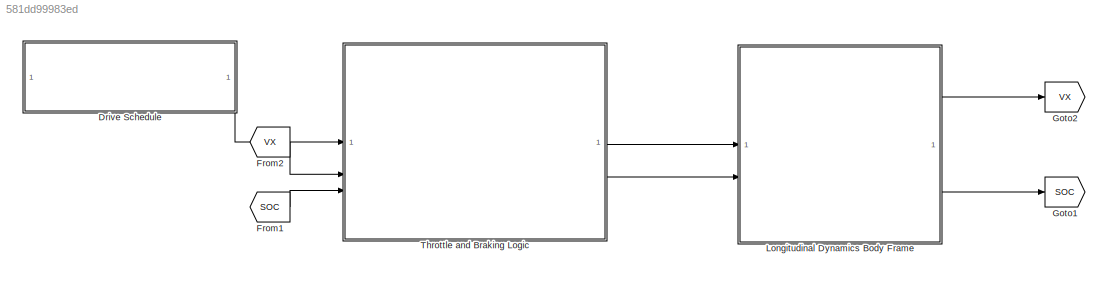
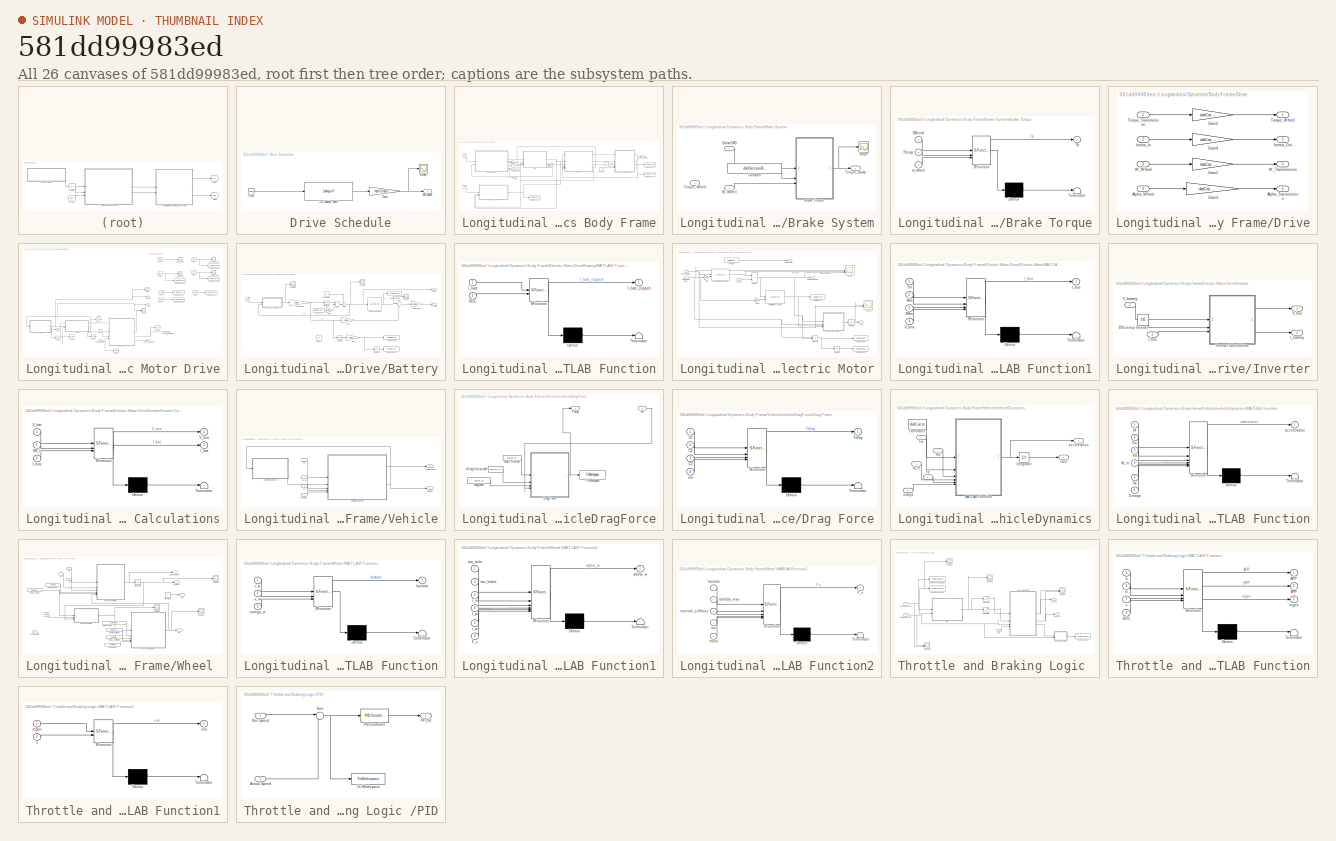
[diagram: thumbnail index - all 26 canvases of the model, root first then tree order]
MODEL slx_581dd99983ed
KIND model
CONFIG AbsTol = auto
CONFIG EnableMultiTasking = off
CONFIG FixedStep = 0.001
CONFIG MaxStep = auto
CONFIG MinStep = auto
CONFIG RelTol = 1e-3
CONFIG SampleTimeConstraint = Unconstrained
CONFIG SolverName = ode5
CONFIG StartTime = 0.0
CONFIG StopTime = 250
BLOCK [SubSystem] Drive Schedule
BLOCK [Lookup_n-D] Drive Schedule/1-D Lookup Table
  BreakpointsForDimension1 = Time
  InputPortMap = u0
  InternalRulePriority = Speed
  NumberOfTableDimensions = 1
  RndMeth = Simplest
  Table = DriveData
BLOCK [Clock] Drive Schedule/Clock
BLOCK [Gain] Drive Schedule/Gain
  Gain = mph2mps
BLOCK [Scope] Drive Schedule/Scope
  ActiveDisplayYMaximum = 28.35
  ActiveDisplayYMinimum = -3.15
  DataLoggingVariableName = ScopeData4
  Floating = off
  GraphicalSettings = {"GraphicalSettings":{"LegacySettings":true,"Style":{"Style":{"AxesColor":"[0 0 0]","ChannelNames":[""],"ColorOrder":"[1 0.909803921568627 0.392156862745098;0.149019607843137 0.549019607843137 0.866666666666667;0.96078431372549 0.466666666666667 0.16078431372549;0.286274509803922 0.858823529411765 0.250980392156863;0.752941176470588 0.36078431372549 0.984313725490196;0.423529411764706 0.9568627450...<+432ch>  <repeated x3 — deduplicated; at blocks: Scope, Scope1>
  MultipleDisplayCache = [{"MaxYLimMag":28.35,"MaxYLimReal":28.35,"MinYLimMag":0,"MinYLimReal":-3.15,"PlotAsMagnitudePhase":false,"ShowGrid":true,"ShowLegend":false,"Title":"%<SignalLabel>","YLabel":""}]
  NumInputPorts = 1
  WasSavedAsWebScope = on
  WindowPosition = [308 467 560 420]
BLOCK [Outport] Drive Schedule/des speed 
  VectorParamsAs1DForOutWhenUnconnected = off
BLOCK [From] From1
  GotoTag = SOC
BLOCK [From] From2
  GotoTag = VX
BLOCK [Goto] Goto1
  GotoTag = SOC
BLOCK [Goto] Goto2
  GotoTag = VX
BLOCK [SubSystem] Longitudinal Dynamics Body Frame
BLOCK [Inport] Longitudinal Dynamics Body Frame/APP (%)
BLOCK [Inport] Longitudinal Dynamics Body Frame/BPP (%) 
  Port = 2
BLOCK [SubSystem] Longitudinal Dynamics Body Frame/Brake System
BLOCK [SubSystem] Longitudinal Dynamics Body Frame/Brake System/Brake Torque
  ErrorFcn = Stateflow.Translate.translate
  PermitHierarchicalResolution = ExplicitOnly
  SFBlockType = MATLAB Function
  TreatAsAtomicUnit = on
BLOCK [Demux] Longitudinal Dynamics Body Frame/Brake System/Brake Torque/ Demux 
  Outputs = 1
BLOCK [S-Function] Longitudinal Dynamics Body Frame/Brake System/Brake Torque/ SFunction 
  EnableBusSupport = off
  FunctionName = sf_sfun
  PortCounts = [3 2]
  SFcnIsStateOwnerBlock = off
  SFunctionDeploymentMode = off
  Tag = Stateflow S-Function 7
BLOCK [Terminator] Longitudinal Dynamics Body Frame/Brake System/Brake Torque/ Terminator 
BLOCK [Inport] Longitudinal Dynamics Body Frame/Brake System/Brake Torque/BBcmd
BLOCK [Outport] Longitudinal Dynamics Body Frame/Brake System/Brake Torque/Tb
BLOCK [Inport] Longitudinal Dynamics Body Frame/Brake System/Brake Torque/Tbcap
  Port = 2
BLOCK [Inport] Longitudinal Dynamics Body Frame/Brake System/Brake Torque/w_wheel
  Port = 3
BLOCK [Inport] Longitudinal Dynamics Body Frame/Brake System/BrakeCMD 
BLOCK [Constant] Longitudinal Dynamics Body Frame/Brake System/Constant
  Value = datCar.maxBrakeTorque
BLOCK [Scope] Longitudinal Dynamics Body Frame/Brake System/Scope
  ActiveDisplayYMaximum = 56.62718
  ActiveDisplayYMinimum = -3252.17168
  DataLoggingVariableName = ScopeData4
  Floating = off
  GraphicalSettings = {"GraphicalSettings":{"LegacySettings":true,"Style":{"AxesScalingProperties":{"ScaleAxesLimitsAtStop":false},"Style":{"AxesColor":"[0 0 0]","ChannelNames":[""],"ColorOrder":"[1 0.909803921568627 0.392156862745098;0.149019607843137 0.549019607843137 0.866666666666667;0.96078431372549 0.466666666666667 0.16078431372549;0.286274509803922 0.858823529411765 0.250980392156863;0.752941176470588 0.3607843...<+488ch>
  MultipleDisplayCache = [{"MaxYLimMag":3252.17168,"MaxYLimReal":56.62718,"MinYLimMag":0,"MinYLimReal":-3252.17168,"PlotAsMagnitudePhase":false,"ShowGrid":true,"ShowLegend":false,"Title":"%<SignalLabel>","YLabel":""}]
  NumInputPorts = 1
  WasSavedAsWebScope = on
BLOCK [Outport] Longitudinal Dynamics Body Frame/Brake System/Torque_Brake
  VectorParamsAs1DForOutWhenUnconnected = off
BLOCK [Inport] Longitudinal Dynamics Body Frame/Brake System/Torque_Wheel
  Port = 3
BLOCK [Inport] Longitudinal Dynamics Body Frame/Brake System/W_Wheel
  Port = 2
BLOCK [Constant] Longitudinal Dynamics Body Frame/Constant
  Value = 0
BLOCK [Constant] Longitudinal Dynamics Body Frame/Constant1
  Value = 0
BLOCK [SubSystem] Longitudinal Dynamics Body Frame/Drive
BLOCK [Outport] Longitudinal Dynamics Body Frame/Drive/Alpha_Transmission
  Port = 4
BLOCK [Inport] Longitudinal Dynamics Body Frame/Drive/Alpha_Wheel
  Port = 4
BLOCK [Gain] Longitudinal Dynamics Body Frame/Drive/Gain1
  Gain = datCar.FDRatio
BLOCK [Gain] Longitudinal Dynamics Body Frame/Drive/Gain2
  Gain = datCar.FDRatio
BLOCK [Gain] Longitudinal Dynamics Body Frame/Drive/Gain3
  Gain = datCar.FDRatio
BLOCK [Gain] Longitudinal Dynamics Body Frame/Drive/Gain4
  Gain = datCar.FDRatio^2
BLOCK [Inport] Longitudinal Dynamics Body Frame/Drive/Inertia_In
  Port = 2
BLOCK [Outport] Longitudinal Dynamics Body Frame/Drive/Inertia_Out
  Port = 2
BLOCK [Inport] Longitudinal Dynamics Body Frame/Drive/Torque_Transmission
BLOCK [Outport] Longitudinal Dynamics Body Frame/Drive/Torque_Wheel
BLOCK [Outport] Longitudinal Dynamics Body Frame/Drive/W_Transmission
  Port = 3
BLOCK [Inport] Longitudinal Dynamics Body Frame/Drive/W_Wheel
  Port = 3
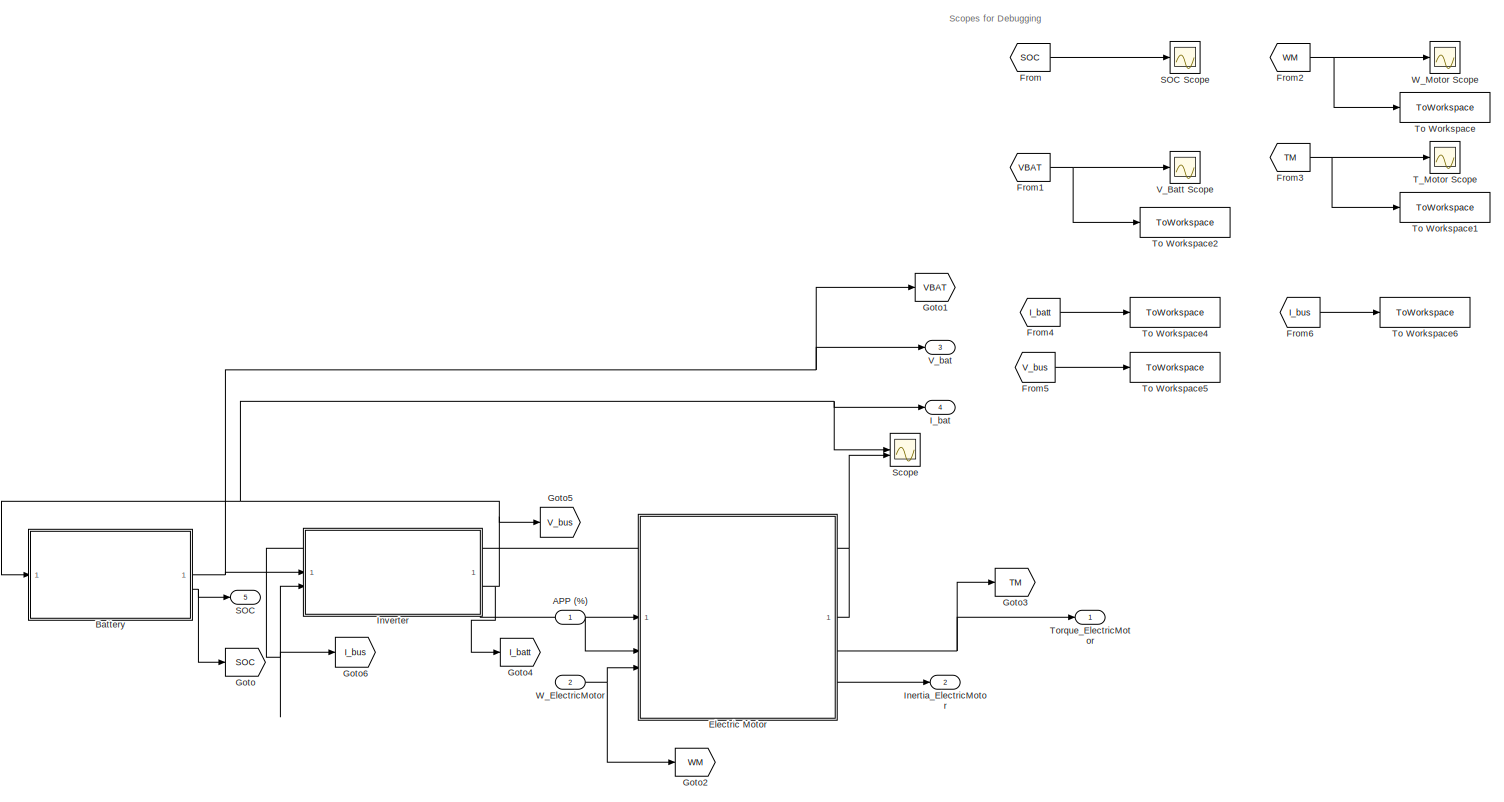
[diagram: Longitudinal Dynamics Body Frame/Electric Motor Drive - part 1/1, most of the canvas]
BLOCK [SubSystem] Longitudinal Dynamics Body Frame/Electric Motor Drive
BLOCK [Inport] Longitudinal Dynamics Body Frame/Electric Motor Drive/APP (%)
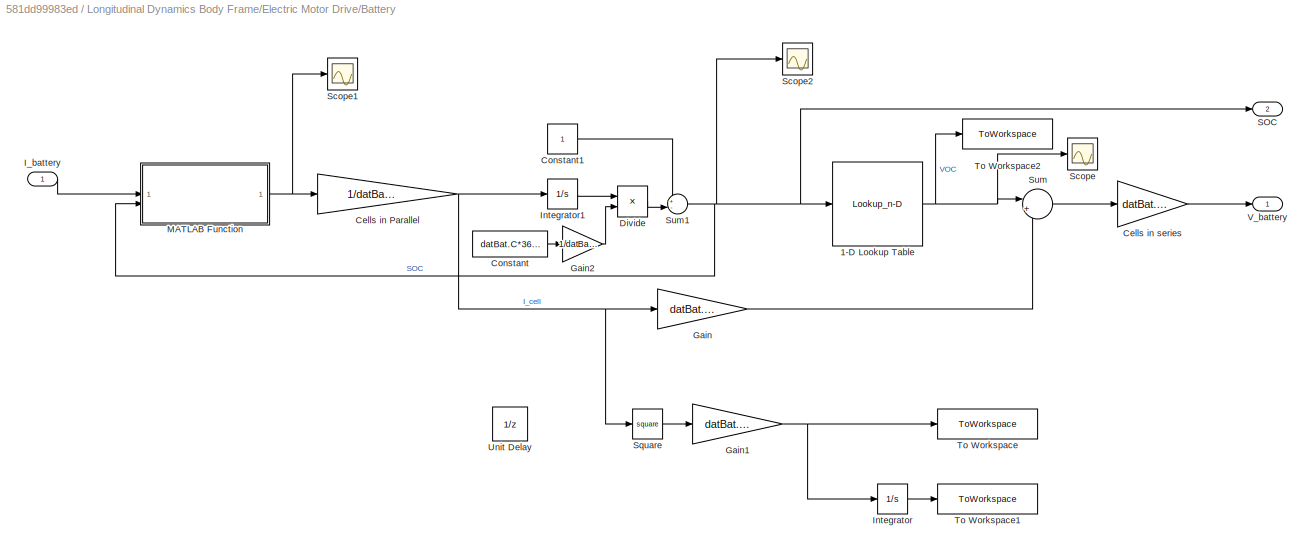
BLOCK [SubSystem] Longitudinal Dynamics Body Frame/Electric Motor Drive/Battery
BLOCK [Lookup_n-D] Longitudinal Dynamics Body Frame/Electric Motor Drive/Battery/1-D Lookup Table
  BreakpointsForDimension1 = datBat.SOC
  ExtrapMethod = Clip
  InputPortMap = u0
  InternalRulePriority = Speed
  NumberOfTableDimensions = 1
  RndMeth = Simplest
  Table = datBat.OCV
  UseLastTableValue = on
BLOCK [Gain] Longitudinal Dynamics Body Frame/Electric Motor Drive/Battery/Cells in Parallel
  Gain = 1/datBat.numParallel
BLOCK [Gain] Longitudinal Dynamics Body Frame/Electric Motor Drive/Battery/Cells in series
  Gain = datBat.numSeries
BLOCK [Constant] Longitudinal Dynamics Body Frame/Electric Motor Drive/Battery/Constant
  Value = datBat.C*3600
BLOCK [Constant] Longitudinal Dynamics Body Frame/Electric Motor Drive/Battery/Constant1
BLOCK [Product] Longitudinal Dynamics Body Frame/Electric Motor Drive/Battery/Divide
  Inputs = */
BLOCK [Gain] Longitudinal Dynamics Body Frame/Electric Motor Drive/Battery/Gain
  Gain = datBat.Rint
BLOCK [Gain] Longitudinal Dynamics Body Frame/Electric Motor Drive/Battery/Gain1
  Gain = datBat.Rint
BLOCK [Gain] Longitudinal Dynamics Body Frame/Electric Motor Drive/Battery/Gain2
  Gain = 1/datBat.numParallel
BLOCK [Inport] Longitudinal Dynamics Body Frame/Electric Motor Drive/Battery/I_battery
BLOCK [Integrator] Longitudinal Dynamics Body Frame/Electric Motor Drive/Battery/Integrator
BLOCK [Integrator] Longitudinal Dynamics Body Frame/Electric Motor Drive/Battery/Integrator1
  InitialCondition = 1459.5
BLOCK [SubSystem] Longitudinal Dynamics Body Frame/Electric Motor Drive/Battery/MATLAB Function
  ErrorFcn = Stateflow.Translate.translate
  LibrarySourceBlock = simulink/User-Defined\nFunctions/MATLAB Function
  PermitHierarchicalResolution = ExplicitOnly
  SFBlockType = MATLAB Function
  TreatAsAtomicUnit = on
BLOCK [Demux] Longitudinal Dynamics Body Frame/Electric Motor Drive/Battery/MATLAB Function/ Demux 
  Outputs = 1
BLOCK [S-Function] Longitudinal Dynamics Body Frame/Electric Motor Drive/Battery/MATLAB Function/ SFunction 
  EnableBusSupport = off
  FunctionName = sf_sfun
  PortCounts = [2 2]
  SFcnIsStateOwnerBlock = off
  SFunctionDeploymentMode = off
  Tag = Stateflow S-Function 13
BLOCK [Terminator] Longitudinal Dynamics Body Frame/Electric Motor Drive/Battery/MATLAB Function/ Terminator 
BLOCK [Inport] Longitudinal Dynamics Body Frame/Electric Motor Drive/Battery/MATLAB Function/I_batt
BLOCK [Outport] Longitudinal Dynamics Body Frame/Electric Motor Drive/Battery/MATLAB Function/I_batt_clipped
BLOCK [Inport] Longitudinal Dynamics Body Frame/Electric Motor Drive/Battery/MATLAB Function/SOC
  Port = 2
BLOCK [Outport] Longitudinal Dynamics Body Frame/Electric Motor Drive/Battery/SOC
  Port = 2
BLOCK [Scope] Longitudinal Dynamics Body Frame/Electric Motor Drive/Battery/Scope
  ActiveDisplayYMaximum = 3.9505775108183836
  ActiveDisplayYMinimum = 3.9447746248567759
  DataLoggingVariableName = ScopeData5
  Floating = off
  GraphicalSettings = {"Style":{"BackgroundColor":[0.12941176470588237,0.12941176470588237,0.12941176470588237],"AxesColor":[0.07058823529411765,0.07058823529411765,0.07058823529411765],"LabelsColor":[0.8509803921568627,0.8509803921568627,0.8509803921568627],"PreserveColors":false,"Visible":[true],"LineStyle":["-"],"LineWidth":[1.5],"BarWidth":[0.9],"LineColor":["auto"],"LineFaceAlpha":[1],"LineEdgeAlpha":[1],"Marker":...<+1933ch>
  MultipleDisplayCache = [{"MaxYLimMag":3.9505775108183836,"MaxYLimReal":3.9505775108183836,"MinYLimMag":3.9447746248567759,"MinYLimReal":3.9447746248567759,"PlotAsMagnitudePhase":false,"ShowGrid":true,"ShowLegend":false,"Title":"%<SignalLabel>","YLabel":""}]
  NumInputPorts = 1
  ScopeFrameLocation = window
  WasSavedAsWebScope = on
  WindowPosition = [1000.000000,510.000000,560.000000,420.000000,]
BLOCK [Scope] Longitudinal Dynamics Body Frame/Electric Motor Drive/Battery/Scope1
  ActiveDisplayYMaximum = 120.71055450400272
  ActiveDisplayYMinimum = -38.071970075878966
  DataLoggingVariableName = ScopeData6
  Floating = off
  GraphicalSettings = {"Style":{"BackgroundColor":[0.12941176470588237,0.12941176470588237,0.12941176470588237],"AxesColor":[0.07058823529411765,0.07058823529411765,0.07058823529411765],"LabelsColor":[0.8509803921568627,0.8509803921568627,0.8509803921568627],"PreserveColors":false,"Visible":[true],"LineStyle":["-"],"LineWidth":[1.5],"BarWidth":[0.9],"LineColor":["auto"],"LineFaceAlpha":[1],"LineEdgeAlpha":[1],"Marker":...<+1964ch>
  MultipleDisplayCache = [{"MaxYLimMag":120.71055450400272,"MaxYLimReal":120.71055450400272,"MinYLimMag":0,"MinYLimReal":-38.071970075878966,"PlotAsMagnitudePhase":false,"ShowGrid":true,"ShowLegend":false,"Title":"%<SignalLabel>","YLabel":""}]
  NumInputPorts = 1
  ScopeFrameLocation = window
  WasSavedAsWebScope = on
  WindowPosition = [1000.000000,510.000000,560.000000,420.000000,]
BLOCK [Scope] Longitudinal Dynamics Body Frame/Electric Motor Drive/Battery/Scope2
  ActiveDisplayYMaximum = 0.80115502179471731
  ActiveDisplayYMinimum = 0.78954924829198925
  Floating = off
  GraphicalSettings = {"Style":{"BackgroundColor":[0.12941176470588237,0.12941176470588237,0.12941176470588237],"AxesColor":[0.07058823529411765,0.07058823529411765,0.07058823529411765],"LabelsColor":[0.8509803921568627,0.8509803921568627,0.8509803921568627],"PreserveColors":false,"Visible":[true],"LineStyle":["-"],"LineWidth":[1.5],"BarWidth":[0.9],"LineColor":["auto"],"LineFaceAlpha":[1],"LineEdgeAlpha":[1],"Marker":...<+1990ch>
  MultipleDisplayCache = [{"MaxYLimMag":0.80115502179471731,"MaxYLimReal":0.80115502179471731,"MinYLimMag":0.78954924829198925,"MinYLimReal":0.78954924829198925,"PlotAsMagnitudePhase":false,"ShowGrid":true,"ShowLegend":false,"Title":"%<SignalLabel>","YLabel":""}]
  NumInputPorts = 1
  ScopeFrameLocation = window
  WasSavedAsWebScope = on
  WindowPosition = [1000.000000,510.000000,560.000000,420.000000,]
BLOCK [Math] Longitudinal Dynamics Body Frame/Electric Motor Drive/Battery/Square
  Operator = square
BLOCK [Sum] Longitudinal Dynamics Body Frame/Electric Motor Drive/Battery/Sum
  Inputs = |+-
BLOCK [Sum] Longitudinal Dynamics Body Frame/Electric Motor Drive/Battery/Sum1
  Inputs = +-|
BLOCK [ToWorkspace] Longitudinal Dynamics Body Frame/Electric Motor Drive/Battery/To Workspace
  FixptAsFi = on
  MaxDataPoints = inf
  SampleTime = -1
  SaveFormat = Timeseries
  VariableName = BatteryPowerLosses
BLOCK [ToWorkspace] Longitudinal Dynamics Body Frame/Electric Motor Drive/Battery/To Workspace1
  FixptAsFi = on
  MaxDataPoints = inf
  SampleTime = -1
  SaveFormat = Timeseries
  VariableName = BatteryEnergyLosses
BLOCK [ToWorkspace] Longitudinal Dynamics Body Frame/Electric Motor Drive/Battery/To Workspace2
  FixptAsFi = on
  MaxDataPoints = inf
  SampleTime = -1
  SaveFormat = Timeseries
  VariableName = OCV
BLOCK [UnitDelay] Longitudinal Dynamics Body Frame/Electric Motor Drive/Battery/Unit Delay
  HasFrameUpgradeWarning = on
  SampleTime = -1
BLOCK [Outport] Longitudinal Dynamics Body Frame/Electric Motor Drive/Battery/V_battery
BLOCK [SubSystem] Longitudinal Dynamics Body Frame/Electric Motor Drive/Electric Motor
BLOCK [Inport] Longitudinal Dynamics Body Frame/Electric Motor Drive/Electric Motor/APP (%)
  Port = 2
BLOCK [Inport] Longitudinal Dynamics Body Frame/Electric Motor Drive/Electric Motor/Bus Voltage (V)
BLOCK [Constant] Longitudinal Dynamics Body Frame/Electric Motor Drive/Electric Motor/Constant
  Value = datMotor.inertia
BLOCK [Gain] Longitudinal Dynamics Body Frame/Electric Motor Drive/Electric Motor/Gain
  Gain = 30/pi
BLOCK [Gain] Longitudinal Dynamics Body Frame/Electric Motor Drive/Electric Motor/Gain1
  Gain = 30/pi
BLOCK [Outport] Longitudinal Dynamics Body Frame/Electric Motor Drive/Electric Motor/I_bus
BLOCK [Outport] Longitudinal Dynamics Body Frame/Electric Motor Drive/Electric Motor/Inertia_Motor
  Port = 3
BLOCK [Integrator] Longitudinal Dynamics Body Frame/Electric Motor Drive/Electric Motor/Integrator
BLOCK [SubSystem] Longitudinal Dynamics Body Frame/Electric Motor Drive/Electric Motor/MATLAB Function1
  ErrorFcn = Stateflow.Translate.translate
  LibrarySourceBlock = simulink/User-Defined\nFunctions/MATLAB Function
  PermitHierarchicalResolution = ExplicitOnly
  SFBlockType = MATLAB Function
  TreatAsAtomicUnit = on
BLOCK [Demux] Longitudinal Dynamics Body Frame/Electric Motor Drive/Electric Motor/MATLAB Function1/ Demux 
  Outputs = 1
BLOCK [S-Function] Longitudinal Dynamics Body Frame/Electric Motor Drive/Electric Motor/MATLAB Function1/ SFunction 
  EnableBusSupport = off
  FunctionName = sf_sfun
  PortCounts = [4 2]
  SFcnIsStateOwnerBlock = off
  SFunctionDeploymentMode = off
  Tag = Stateflow S-Function 1
BLOCK [Terminator] Longitudinal Dynamics Body Frame/Electric Motor Drive/Electric Motor/MATLAB Function1/ Terminator 
BLOCK [Inport] Longitudinal Dynamics Body Frame/Electric Motor Drive/Electric Motor/MATLAB Function1/Effm
  Port = 3
BLOCK [Outport] Longitudinal Dynamics Body Frame/Electric Motor Drive/Electric Motor/MATLAB Function1/I_bus
BLOCK [Inport] Longitudinal Dynamics Body Frame/Electric Motor Drive/Electric Motor/MATLAB Function1/Tm
BLOCK [Inport] Longitudinal Dynamics Body Frame/Electric Motor Drive/Electric Motor/MATLAB Function1/V_bus
  Port = 4
BLOCK [Inport] Longitudinal Dynamics Body Frame/Electric Motor Drive/Electric Motor/MATLAB Function1/Wm
  Port = 2
BLOCK [Lookup_n-D] Longitudinal Dynamics Body Frame/Electric Motor Drive/Electric Motor/Max Motor Torque Table
  BreakpointsForDimension1 = datMotor.vbus
  BreakpointsForDimension2 = datMotor.rpm
  BreakpointsForDimension3 = [5, 7]
  ExtrapMethod = Clip
  InputPortMap = u0,u1
  InternalRulePriority = Speed
  RndMeth = Simplest
  Table = datMotor.maxtorque
  UseLastTableValue = on
BLOCK [ToWorkspace] Longitudinal Dynamics Body Frame/Electric Motor Drive/Electric Motor/Motor Efficiency
  FixptAsFi = on
  MaxDataPoints = inf
  SampleTime = -1
  SaveFormat = Timeseries
  VariableName = efficiency_motor
BLOCK [Lookup_n-D] Longitudinal Dynamics Body Frame/Electric Motor Drive/Electric Motor/Motor Efficiency Table
  BreakpointsForDimension1 = datMotor.eta_torque
  BreakpointsForDimension2 = datMotor.eta_speed
  BreakpointsForDimension3 = [5, 7]
  ExtrapMethod = Clip
  InputPortMap = u0,u1
  InternalRulePriority = Speed
  RndMeth = Simplest
  Table = datMotor.eta_val
  UseLastTableValue = on
BLOCK [Inport] Longitudinal Dynamics Body Frame/Electric Motor Drive/Electric Motor/Motor Speed (rad//s)
  Port = 3
BLOCK [Outport] Longitudinal Dynamics Body Frame/Electric Motor Drive/Electric Motor/Motor Torque (Nm)
  Port = 2
BLOCK [Product] Longitudinal Dynamics Body Frame/Electric Motor Drive/Electric Motor/Product
BLOCK [Product] Longitudinal Dynamics Body Frame/Electric Motor Drive/Electric Motor/Product1
BLOCK [Scope] Longitudinal Dynamics Body Frame/Electric Motor Drive/Electric Motor/Scope
  ActiveDisplayYMaximum = 699.63306
  ActiveDisplayYMinimum = -117.53104
  DataLoggingVariableName = ScopeData1
  Floating = off
  GraphicalSettings = {"GraphicalSettings":{"LegacySettings":true,"Style":{"Style":{"AxesColor":"[0 0 0]","ChannelNames":[""],"ColorOrder":"[1 0.909803921568627 0.392156862745098;0.149019607843137 0.549019607843137 0.866666666666667;0.96078431372549 0.466666666666667 0.16078431372549;0.286274509803922 0.858823529411765 0.250980392156863;0.752941176470588 0.36078431372549 0.984313725490196;0.423529411764706 0.9568627450...<+438ch>
  MultipleDisplayCache = [{"MaxYLimMag":699.63306,"MaxYLimReal":699.63306,"MinYLimMag":0,"MinYLimReal":-117.53104,"PlotAsMagnitudePhase":false,"ShowGrid":true,"ShowLegend":true,"Title":"%<SignalLabel>","YLabel":""}]
  NumInputPorts = 3
  ShowLegend = on
  WasSavedAsWebScope = on
  WindowPosition = [502 121 560 420]
BLOCK [Scope] Longitudinal Dynamics Body Frame/Electric Motor Drive/Electric Motor/Scope1
  ActiveDisplayYMaximum = 433.2973
  ActiveDisplayYMinimum = -70.21177
  DataLoggingVariableName = ScopeData2
  Floating = off
  GraphicalSettings = {"GraphicalSettings":{"LegacySettings":true,"Style":{"Style":{"AxesColor":"[0 0 0]","ChannelNames":[""],"ColorOrder":"[1 0.909803921568627 0.392156862745098;0.149019607843137 0.549019607843137 0.866666666666667;0.96078431372549 0.466666666666667 0.16078431372549;0.286274509803922 0.858823529411765 0.250980392156863;0.752941176470588 0.36078431372549 0.984313725490196;0.423529411764706 0.9568627450...<+438ch>
  MultipleDisplayCache = [{"MaxYLimMag":433.2973,"MaxYLimReal":433.2973,"MinYLimMag":0,"MinYLimReal":-70.21177,"PlotAsMagnitudePhase":false,"ShowGrid":true,"ShowLegend":true,"Title":"%<SignalLabel>","YLabel":""}]
  NumInputPorts = 3
  ShowLegend = on
  WasSavedAsWebScope = on
  WindowPosition = [502 121 560 420]
BLOCK [ToWorkspace] Longitudinal Dynamics Body Frame/Electric Motor Drive/Electric Motor/To Workspace
  FixptAsFi = on
  MaxDataPoints = inf
  SampleTime = -1
  SaveFormat = Timeseries
  VariableName = MotorPower
BLOCK [ToWorkspace] Longitudinal Dynamics Body Frame/Electric Motor Drive/Electric Motor/To Workspace1
  FixptAsFi = on
  MaxDataPoints = inf
  SampleTime = -1
  SaveFormat = Timeseries
  VariableName = MotorEnergy
BLOCK [UnitDelay] Longitudinal Dynamics Body Frame/Electric Motor Drive/Electric Motor/Unit Delay
  HasFrameUpgradeWarning = on
  SampleTime = -1
BLOCK [From] Longitudinal Dynamics Body Frame/Electric Motor Drive/From
  GotoTag = SOC
BLOCK [From] Longitudinal Dynamics Body Frame/Electric Motor Drive/From1
  GotoTag = VBAT
BLOCK [From] Longitudinal Dynamics Body Frame/Electric Motor Drive/From2
  GotoTag = WM
BLOCK [From] Longitudinal Dynamics Body Frame/Electric Motor Drive/From3
  GotoTag = TM
BLOCK [From] Longitudinal Dynamics Body Frame/Electric Motor Drive/From4
  GotoTag = I_batt
BLOCK [From] Longitudinal Dynamics Body Frame/Electric Motor Drive/From5
  GotoTag = V_bus
BLOCK [From] Longitudinal Dynamics Body Frame/Electric Motor Drive/From6
  GotoTag = I_bus
BLOCK [Goto] Longitudinal Dynamics Body Frame/Electric Motor Drive/Goto
  GotoTag = SOC
BLOCK [Goto] Longitudinal Dynamics Body Frame/Electric Motor Drive/Goto1
  GotoTag = VBAT
BLOCK [Goto] Longitudinal Dynamics Body Frame/Electric Motor Drive/Goto2
  GotoTag = WM
BLOCK [Goto] Longitudinal Dynamics Body Frame/Electric Motor Drive/Goto3
  GotoTag = TM
BLOCK [Goto] Longitudinal Dynamics Body Frame/Electric Motor Drive/Goto4
  GotoTag = I_batt
BLOCK [Goto] Longitudinal Dynamics Body Frame/Electric Motor Drive/Goto5
  GotoTag = V_bus
BLOCK [Goto] Longitudinal Dynamics Body Frame/Electric Motor Drive/Goto6
  GotoTag = I_bus
BLOCK [Outport] Longitudinal Dynamics Body Frame/Electric Motor Drive/I_bat
  Port = 4
BLOCK [Outport] Longitudinal Dynamics Body Frame/Electric Motor Drive/Inertia_ElectricMotor
  Port = 2
BLOCK [SubSystem] Longitudinal Dynamics Body Frame/Electric Motor Drive/Inverter
BLOCK [Constant] Longitudinal Dynamics Body Frame/Electric Motor Drive/Inverter/Efficiency Inverter
  Value = 0.95
BLOCK [Outport] Longitudinal Dynamics Body Frame/Electric Motor Drive/Inverter/I_battery
  Port = 2
BLOCK [Inport] Longitudinal Dynamics Body Frame/Electric Motor Drive/Inverter/I_bus
  Port = 2
BLOCK [SubSystem] Longitudinal Dynamics Body Frame/Electric Motor Drive/Inverter/Inverter Calculations
  ErrorFcn = Stateflow.Translate.translate
  LibrarySourceBlock = simulink/User-Defined\nFunctions/MATLAB Function
  PermitHierarchicalResolution = ExplicitOnly
  SFBlockType = MATLAB Function
  TreatAsAtomicUnit = on
BLOCK [Demux] Longitudinal Dynamics Body Frame/Electric Motor Drive/Inverter/Inverter Calculations/ Demux 
  Outputs = 1
BLOCK [S-Function] Longitudinal Dynamics Body Frame/Electric Motor Drive/Inverter/Inverter Calculations/ SFunction 
  EnableBusSupport = off
  FunctionName = sf_sfun
  PortCounts = [3 3]
  SFcnIsStateOwnerBlock = off
  SFunctionDeploymentMode = off
  Tag = Stateflow S-Function 5
BLOCK [Terminator] Longitudinal Dynamics Body Frame/Electric Motor Drive/Inverter/Inverter Calculations/ Terminator 
BLOCK [Inport] Longitudinal Dynamics Body Frame/Electric Motor Drive/Inverter/Inverter Calculations/Eff_I
  Port = 2
BLOCK [Outport] Longitudinal Dynamics Body Frame/Electric Motor Drive/Inverter/Inverter Calculations/I_bat
  Port = 2
BLOCK [Inport] Longitudinal Dynamics Body Frame/Electric Motor Drive/Inverter/Inverter Calculations/I_bus
  Port = 3
BLOCK [Inport] Longitudinal Dynamics Body Frame/Electric Motor Drive/Inverter/Inverter Calculations/V_bat
BLOCK [Outport] Longitudinal Dynamics Body Frame/Electric Motor Drive/Inverter/Inverter Calculations/V_bus
BLOCK [Inport] Longitudinal Dynamics Body Frame/Electric Motor Drive/Inverter/V_battery
BLOCK [Outport] Longitudinal Dynamics Body Frame/Electric Motor Drive/Inverter/V_bus
BLOCK [Outport] Longitudinal Dynamics Body Frame/Electric Motor Drive/SOC
  Port = 5
BLOCK [Scope] Longitudinal Dynamics Body Frame/Electric Motor Drive/SOC Scope
  ActiveDisplayYMaximum = 0.80103
  ActiveDisplayYMinimum = 0.79068
  DataLoggingVariableName = ScopeData7
  Floating = off
  GraphicalSettings = {"GraphicalSettings":{"LegacySettings":true,"Style":{"AxesScalingProperties":{"ScaleAxesLimitsAtStop":false},"Style":{"AxesColor":"[0 0 0]","ChannelNames":[""],"ColorOrder":"[1 0.909803921568627 0.392156862745098;0.149019607843137 0.549019607843137 0.866666666666667;0.96078431372549 0.466666666666667 0.16078431372549;0.286274509803922 0.858823529411765 0.250980392156863;0.752941176470588 0.3607843...<+544ch>  <repeated x3 — deduplicated; at blocks: SOC Scope, T_Motor Scope, V_Batt Scope>
  MultipleDisplayCache = [{"MaxYLimMag":0.80103,"MaxYLimReal":0.80103,"MinYLimMag":0.79068,"MinYLimReal":0.79068,"PlotAsMagnitudePhase":false,"ShowGrid":true,"ShowLegend":false,"Title":"%<SignalLabel>","YLabel":""}]
  NumInputPorts = 1
  WasSavedAsWebScope = on
BLOCK [Scope] Longitudinal Dynamics Body Frame/Electric Motor Drive/Scope
  ActiveDisplayYMaximum = 118.26537
  ActiveDisplayYMinimum = -92.41521
  DataLoggingVariableName = ScopeData2
  Floating = off
  GraphicalSettings = {"GraphicalSettings":{"LegacySettings":true,"Style":{"AxesScalingProperties":{"ScaleAxesLimitsAtStop":false},"Style":{"AxesColor":"[0 0 0]","ChannelNames":[""],"ColorOrder":"[1 0.909803921568627 0.392156862745098;0.149019607843137 0.549019607843137 0.866666666666667;0.96078431372549 0.466666666666667 0.16078431372549;0.286274509803922 0.858823529411765 0.250980392156863;0.752941176470588 0.3607843...<+547ch>
  MultipleDisplayCache = [{"MaxYLimMag":118.26537,"MaxYLimReal":118.26537,"MinYLimMag":0,"MinYLimReal":-92.41521,"PlotAsMagnitudePhase":false,"ShowGrid":true,"ShowLegend":true,"Title":"%<SignalLabel>","YLabel":""}]
  NumInputPorts = 2
  ShowLegend = on
  WasSavedAsWebScope = on
BLOCK [Scope] Longitudinal Dynamics Body Frame/Electric Motor Drive/T_Motor Scope
  ActiveDisplayYMaximum = 115.47111
  ActiveDisplayYMinimum = -92.74121
  DataLoggingVariableName = ScopeData10
  Floating = off
  MultipleDisplayCache = [{"MaxYLimMag":115.47111,"MaxYLimReal":115.47111,"MinYLimMag":0,"MinYLimReal":-92.74121,"PlotAsMagnitudePhase":false,"ShowGrid":true,"ShowLegend":false,"Title":"%<SignalLabel>","YLabel":""}]
  NumInputPorts = 1
  WasSavedAsWebScope = on
BLOCK [ToWorkspace] Longitudinal Dynamics Body Frame/Electric Motor Drive/To Workspace
  FixptAsFi = on
  MaxDataPoints = inf
  SampleTime = -1
  SaveFormat = Timeseries
  VariableName = motor_speed
BLOCK [ToWorkspace] Longitudinal Dynamics Body Frame/Electric Motor Drive/To Workspace1
  FixptAsFi = on
  MaxDataPoints = inf
  SampleTime = -1
  SaveFormat = Timeseries
  VariableName = motor_torque
BLOCK [ToWorkspace] Longitudinal Dynamics Body Frame/Electric Motor Drive/To Workspace2
  FixptAsFi = on
  MaxDataPoints = inf
  SampleTime = -1
  SaveFormat = Timeseries
  VariableName = V_bat
BLOCK [ToWorkspace] Longitudinal Dynamics Body Frame/Electric Motor Drive/To Workspace4
  FixptAsFi = on
  MaxDataPoints = inf
  SampleTime = -1
  SaveFormat = Timeseries
  VariableName = I_bat
BLOCK [ToWorkspace] Longitudinal Dynamics Body Frame/Electric Motor Drive/To Workspace5
  FixptAsFi = on
  MaxDataPoints = inf
  SampleTime = -1
  SaveFormat = Timeseries
  VariableName = V_bus
BLOCK [ToWorkspace] Longitudinal Dynamics Body Frame/Electric Motor Drive/To Workspace6
  FixptAsFi = on
  MaxDataPoints = inf
  SampleTime = -1
  SaveFormat = Timeseries
  VariableName = I_bus
BLOCK [Outport] Longitudinal Dynamics Body Frame/Electric Motor Drive/Torque_ElectricMotor
BLOCK [Scope] Longitudinal Dynamics Body Frame/Electric Motor Drive/V_Batt Scope
  ActiveDisplayYMaximum = 391.49042
  ActiveDisplayYMinimum = 354.15627
  DataLoggingVariableName = ScopeData8
  Floating = off
  MultipleDisplayCache = [{"MaxYLimMag":391.49042,"MaxYLimReal":391.49042,"MinYLimMag":354.15627,"MinYLimReal":354.15627,"PlotAsMagnitudePhase":false,"ShowGrid":true,"ShowLegend":false,"Title":"%<SignalLabel>","YLabel":""}]
  NumInputPorts = 1
  WasSavedAsWebScope = on
BLOCK [Outport] Longitudinal Dynamics Body Frame/Electric Motor Drive/V_bat
  Port = 3
BLOCK [Inport] Longitudinal Dynamics Body Frame/Electric Motor Drive/W_ElectricMotor
  Port = 2
BLOCK [Scope] Longitudinal Dynamics Body Frame/Electric Motor Drive/W_Motor Scope
  ActiveDisplayYMaximum = 695.87961
  ActiveDisplayYMinimum = -83.74997
  DataLoggingVariableName = ScopeData9
  Floating = off
  GraphicalSettings = {"GraphicalSettings":{"LegacySettings":true,"Style":{"AxesScalingProperties":{"AxesScaling":"After N Updates"},"Style":{"AxesColor":"[0 0 0]","ChannelNames":[""],"ColorOrder":"[1 0.909803921568627 0.392156862745098;0.149019607843137 0.549019607843137 0.866666666666667;0.96078431372549 0.466666666666667 0.16078431372549;0.286274509803922 0.858823529411765 0.250980392156863;0.752941176470588 0.36078...<+546ch>
  MultipleDisplayCache = [{"MaxYLimMag":695.87961,"MaxYLimReal":695.87961,"MinYLimMag":0,"MinYLimReal":-83.74997,"PlotAsMagnitudePhase":false,"ShowGrid":true,"ShowLegend":true,"Title":"%<SignalLabel>","YLabel":""}]
  NumInputPorts = 1
  ShowLegend = on
  ShowTimeAxisLabel = on
  WasSavedAsWebScope = on
BLOCK [Outport] Longitudinal Dynamics Body Frame/SOC
  Port = 2
BLOCK [Terminator] Longitudinal Dynamics Body Frame/Terminator
BLOCK [Terminator] Longitudinal Dynamics Body Frame/Terminator1
BLOCK [Terminator] Longitudinal Dynamics Body Frame/Terminator3
BLOCK [ToWorkspace] Longitudinal Dynamics Body Frame/To Workspace
  FixptAsFi = on
  MaxDataPoints = inf
  SampleTime = -1
  SaveFormat = Timeseries
  VariableName = SOC
BLOCK [ToWorkspace] Longitudinal Dynamics Body Frame/To Workspace1
  FixptAsFi = on
  MaxDataPoints = inf
  SampleTime = -1
  SaveFormat = Timeseries
  VariableName = ActualSpeed
BLOCK [ToWorkspace] Longitudinal Dynamics Body Frame/To Workspace2
  FixptAsFi = on
  MaxDataPoints = inf
  SampleTime = -1
  SaveFormat = Timeseries
  VariableName = brake_torque
BLOCK [ToWorkspace] Longitudinal Dynamics Body Frame/To Workspace3
  FixptAsFi = on
  MaxDataPoints = inf
  SampleTime = -1
  SaveFormat = Timeseries
  VariableName = veh_accn
BLOCK [SubSystem] Longitudinal Dynamics Body Frame/Vehicle
BLOCK [Outport] Longitudinal Dynamics Body Frame/Vehicle/Acceleration
  Port = 2
BLOCK [Inport] Longitudinal Dynamics Body Frame/Vehicle/Fw 
BLOCK [Inport] Longitudinal Dynamics Body Frame/Vehicle/M_in 
  Port = 2
BLOCK [Outport] Longitudinal Dynamics Body Frame/Vehicle/Velocity 
  VectorParamsAs1DForOutWhenUnconnected = off
BLOCK [Inport] Longitudinal Dynamics Body Frame/Vehicle/omega
  Port = 4
BLOCK [SubSystem] Longitudinal Dynamics Body Frame/Vehicle/vehicleDragForce
BLOCK [SubSystem] Longitudinal Dynamics Body Frame/Vehicle/vehicleDragForce/Drag Force
  ErrorFcn = Stateflow.Translate.translate
  PermitHierarchicalResolution = ExplicitOnly
  SFBlockType = MATLAB Function
  TreatAsAtomicUnit = on
BLOCK [Demux] Longitudinal Dynamics Body Frame/Vehicle/vehicleDragForce/Drag Force/ Demux 
  Outputs = 1
BLOCK [S-Function] Longitudinal Dynamics Body Frame/Vehicle/vehicleDragForce/Drag Force/ SFunction 
  EnableBusSupport = off
  FunctionName = sf_sfun
  PortCounts = [4 2]
  SFcnIsStateOwnerBlock = off
  SFunctionDeploymentMode = off
  Tag = Stateflow S-Function 9
BLOCK [Terminator] Longitudinal Dynamics Body Frame/Vehicle/vehicleDragForce/Drag Force/ Terminator 
BLOCK [Inport] Longitudinal Dynamics Body Frame/Vehicle/vehicleDragForce/Drag Force/C0
BLOCK [Inport] Longitudinal Dynamics Body Frame/Vehicle/vehicleDragForce/Drag Force/C1
  Port = 2
BLOCK [Inport] Longitudinal Dynamics Body Frame/Vehicle/vehicleDragForce/Drag Force/C2
  Port = 3
BLOCK [Outport] Longitudinal Dynamics Body Frame/Vehicle/vehicleDragForce/Drag Force/Fdrag
  VectorParamsAs1DForOutWhenUnconnected = off
BLOCK [Inport] Longitudinal Dynamics Body Frame/Vehicle/vehicleDragForce/Drag Force/vel
  Port = 4
BLOCK [Outport] Longitudinal Dynamics Body Frame/Vehicle/vehicleDragForce/Fdrag
BLOCK [ToWorkspace] Longitudinal Dynamics Body Frame/Vehicle/vehicleDragForce/To Workspace
  FixptAsFi = on
  MaxDataPoints = inf
  SampleTime = -1
  SaveFormat = Timeseries
  VariableName = Faero
BLOCK [Constant] Longitudinal Dynamics Body Frame/Vehicle/vehicleDragForce/drag coeff
  NameLocation = top
  Value = datCar.C2
BLOCK [Constant] Longitudinal Dynamics Body Frame/Vehicle/vehicleDragForce/rolling friction coeff
  NameLocation = top
  Value = datCar.C1
BLOCK [Constant] Longitudinal Dynamics Body Frame/Vehicle/vehicleDragForce/static friction
  NameLocation = top
  Value = datCar.C0
BLOCK [Inport] Longitudinal Dynamics Body Frame/Vehicle/vehicleDragForce/vel
BLOCK [SubSystem] Longitudinal Dynamics Body Frame/Vehicle/vehicleDynamics
BLOCK [Constant] Longitudinal Dynamics Body Frame/Vehicle/vehicleDynamics/Constant3
  Value = datCar.m
BLOCK [Inport] Longitudinal Dynamics Body Frame/Vehicle/vehicleDynamics/Fd
  Port = 2
BLOCK [Inport] Longitudinal Dynamics Body Frame/Vehicle/vehicleDynamics/Fw 
BLOCK [Integrator] Longitudinal Dynamics Body Frame/Vehicle/vehicleDynamics/Integrator
  InitialCondition = datCar.init.vx0
  LimitOutput = on
  LowerSaturationLimit = 0
BLOCK [SubSystem] Longitudinal Dynamics Body Frame/Vehicle/vehicleDynamics/MATLAB Function
  ErrorFcn = Stateflow.Translate.translate
  PermitHierarchicalResolution = ExplicitOnly
  SFBlockType = MATLAB Function
  TreatAsAtomicUnit = on
BLOCK [Demux] Longitudinal Dynamics Body Frame/Vehicle/vehicleDynamics/MATLAB Function/ Demux 
  Outputs = 1
BLOCK [S-Function] Longitudinal Dynamics Body Frame/Vehicle/vehicleDynamics/MATLAB Function/ SFunction 
  EnableBusSupport = off
  FunctionName = sf_sfun
  PortCounts = [6 2]
  SFcnIsStateOwnerBlock = off
  SFunctionDeploymentMode = off
  Tag = Stateflow S-Function 10
BLOCK [Terminator] Longitudinal Dynamics Body Frame/Vehicle/vehicleDynamics/MATLAB Function/ Terminator 
BLOCK [Inport] Longitudinal Dynamics Body Frame/Vehicle/vehicleDynamics/MATLAB Function/Fd
  Port = 3
BLOCK [Inport] Longitudinal Dynamics Body Frame/Vehicle/vehicleDynamics/MATLAB Function/Fw
  Port = 2
BLOCK [Inport] Longitudinal Dynamics Body Frame/Vehicle/vehicleDynamics/MATLAB Function/M
BLOCK [Inport] Longitudinal Dynamics Body Frame/Vehicle/vehicleDynamics/MATLAB Function/M_in
  Port = 4
BLOCK [Inport] Longitudinal Dynamics Body Frame/Vehicle/vehicleDynamics/MATLAB Function/Omega
  Port = 6
BLOCK [Inport] Longitudinal Dynamics Body Frame/Vehicle/vehicleDynamics/MATLAB Function/Vy
  Port = 5
BLOCK [Outport] Longitudinal Dynamics Body Frame/Vehicle/vehicleDynamics/MATLAB Function/acceleration
  VectorParamsAs1DForOutWhenUnconnected = off
BLOCK [Inport] Longitudinal Dynamics Body Frame/Vehicle/vehicleDynamics/M_in 
  Port = 3
BLOCK [Outport] Longitudinal Dynamics Body Frame/Vehicle/vehicleDynamics/Out2
  Port = 2
BLOCK [Outport] Longitudinal Dynamics Body Frame/Vehicle/vehicleDynamics/acceleration
BLOCK [Inport] Longitudinal Dynamics Body Frame/Vehicle/vehicleDynamics/omega
  Port = 5
BLOCK [Inport] Longitudinal Dynamics Body Frame/Vehicle/vehicleDynamics/vy
  Port = 4
BLOCK [Inport] Longitudinal Dynamics Body Frame/Vehicle/vy
  Port = 3
BLOCK [Outport] Longitudinal Dynamics Body Frame/Velocity X (m//s)
BLOCK [SubSystem] Longitudinal Dynamics Body Frame/Wheel 
BLOCK [Constant] Longitudinal Dynamics Body Frame/Wheel /Constant
  Value = 0
BLOCK [Outport] Longitudinal Dynamics Body Frame/Wheel /Fw
BLOCK [Inport] Longitudinal Dynamics Body Frame/Wheel /I_in
  Port = 2
BLOCK [Constant] Longitudinal Dynamics Body Frame/Wheel /Inertia_wheel
  Value = datCar.Iw
BLOCK [Integrator] Longitudinal Dynamics Body Frame/Wheel /Integrator
  InitialCondition = datCar.init.omega0
BLOCK [SubSystem] Longitudinal Dynamics Body Frame/Wheel /MATLAB Function
  ErrorFcn = Stateflow.Translate.translate
  PermitHierarchicalResolution = ExplicitOnly
  SFBlockType = MATLAB Function
  TreatAsAtomicUnit = on
BLOCK [Demux] Longitudinal Dynamics Body Frame/Wheel /MATLAB Function/ Demux 
  Outputs = 1
BLOCK [S-Function] Longitudinal Dynamics Body Frame/Wheel /MATLAB Function/ SFunction 
  EnableBusSupport = off
  FunctionName = sf_sfun
  PortCounts = [3 2]
  SFcnIsStateOwnerBlock = off
  SFunctionDeploymentMode = off
  Tag = Stateflow S-Function 2
BLOCK [Terminator] Longitudinal Dynamics Body Frame/Wheel /MATLAB Function/ Terminator 
BLOCK [Outport] Longitudinal Dynamics Body Frame/Wheel /MATLAB Function/lambda
BLOCK [Inport] Longitudinal Dynamics Body Frame/Wheel /MATLAB Function/omega_w
  Port = 3
BLOCK [Inport] Longitudinal Dynamics Body Frame/Wheel /MATLAB Function/r_w
BLOCK [Inport] Longitudinal Dynamics Body Frame/Wheel /MATLAB Function/v_w
  Port = 2
BLOCK [SubSystem] Longitudinal Dynamics Body Frame/Wheel /MATLAB Function1
  ErrorFcn = Stateflow.Translate.translate
  PermitHierarchicalResolution = ExplicitOnly
  SFBlockType = MATLAB Function
  TreatAsAtomicUnit = on
BLOCK [Demux] Longitudinal Dynamics Body Frame/Wheel /MATLAB Function1/ Demux 
  Outputs = 1
BLOCK [S-Function] Longitudinal Dynamics Body Frame/Wheel /MATLAB Function1/ SFunction 
  EnableBusSupport = off
  FunctionName = sf_sfun
  PortCounts = [6 2]
  SFcnIsStateOwnerBlock = off
  SFunctionDeploymentMode = off
  Tag = Stateflow S-Function 3
BLOCK [Terminator] Longitudinal Dynamics Body Frame/Wheel /MATLAB Function1/ Terminator 
BLOCK [Inport] Longitudinal Dynamics Body Frame/Wheel /MATLAB Function1/F_x
  Port = 6
BLOCK [Inport] Longitudinal Dynamics Body Frame/Wheel /MATLAB Function1/I_in
  Port = 3
BLOCK [Inport] Longitudinal Dynamics Body Frame/Wheel /MATLAB Function1/I_w
  Port = 4
BLOCK [Outport] Longitudinal Dynamics Body Frame/Wheel /MATLAB Function1/alpha_w
BLOCK [Inport] Longitudinal Dynamics Body Frame/Wheel /MATLAB Function1/r_w
  Port = 5
BLOCK [Inport] Longitudinal Dynamics Body Frame/Wheel /MATLAB Function1/tau_axle
BLOCK [Inport] Longitudinal Dynamics Body Frame/Wheel /MATLAB Function1/tau_brake
  Port = 2
BLOCK [SubSystem] Longitudinal Dynamics Body Frame/Wheel /MATLAB Function2
  ErrorFcn = Stateflow.Translate.translate
  PermitHierarchicalResolution = ExplicitOnly
  SFBlockType = MATLAB Function
  TreatAsAtomicUnit = on
BLOCK [Demux] Longitudinal Dynamics Body Frame/Wheel /MATLAB Function2/ Demux 
  Outputs = 1
BLOCK [S-Function] Longitudinal Dynamics Body Frame/Wheel /MATLAB Function2/ SFunction 
  EnableBusSupport = off
  FunctionName = sf_sfun
  PortCounts = [5 2]
  SFcnIsStateOwnerBlock = off
  SFunctionDeploymentMode = off
  Tag = Stateflow S-Function 4
BLOCK [Terminator] Longitudinal Dynamics Body Frame/Wheel /MATLAB Function2/ Terminator 
BLOCK [Outport] Longitudinal Dynamics Body Frame/Wheel /MATLAB Function2/F_x
BLOCK [Inport] Longitudinal Dynamics Body Frame/Wheel /MATLAB Function2/lambda
BLOCK [Inport] Longitudinal Dynamics Body Frame/Wheel /MATLAB Function2/lambda_max
  Port = 2
BLOCK [Inport] Longitudinal Dynamics Body Frame/Wheel /MATLAB Function2/mass
  Port = 5
BLOCK [Inport] Longitudinal Dynamics Body Frame/Wheel /MATLAB Function2/mu
  Port = 4
BLOCK [Inport] Longitudinal Dynamics Body Frame/Wheel /MATLAB Function2/nominal_stiffness
  Port = 3
BLOCK [Outport] Longitudinal Dynamics Body Frame/Wheel /M_in
  Port = 2
BLOCK [Scope] Longitudinal Dynamics Body Frame/Wheel /Scope
  ActiveDisplayYMaximum = 92.78395
  ActiveDisplayYMinimum = -11.16666
  DataLoggingVariableName = ScopeData1
  Floating = off
  MultipleDisplayCache = [{"MaxYLimMag":92.78395,"MaxYLimReal":92.78395,"MinYLimMag":0,"MinYLimReal":-11.16666,"PlotAsMagnitudePhase":false,"ShowGrid":true,"ShowLegend":false,"Title":"%<SignalLabel>","YLabel":""}]
  NumInputPorts = 1
  WasSavedAsWebScope = on
  WindowPosition = [1105 65 560 420]
BLOCK [Scope] Longitudinal Dynamics Body Frame/Wheel /Scope1
  ActiveDisplayYMaximum = 2.76989
  ActiveDisplayYMinimum = -33.74112
  DataLoggingVariableName = ScopeData2
  Floating = off
  GraphicalSettings = {"GraphicalSettings":{"LegacySettings":true,"Style":{"AxesScalingProperties":{"ScaleAxesLimitsAtStop":false},"Style":{"AxesColor":"[0 0 0]","ChannelNames":[""],"ColorOrder":"[1 0.909803921568627 0.392156862745098;0.149019607843137 0.549019607843137 0.866666666666667;0.96078431372549 0.466666666666667 0.16078431372549;0.286274509803922 0.858823529411765 0.250980392156863;0.752941176470588 0.3607843...<+513ch>
  MultipleDisplayCache = [{"MaxYLimMag":33.74112,"MaxYLimReal":2.76989,"MinYLimMag":0,"MinYLimReal":-33.74112,"PlotAsMagnitudePhase":false,"ShowGrid":true,"ShowLegend":false,"Title":"%<SignalLabel>","YLabel":""}]
  NumInputPorts = 1
  WasSavedAsWebScope = on
  WindowPosition = [365 109 560 420]
BLOCK [Scope] Longitudinal Dynamics Body Frame/Wheel /Scope2
  ActiveDisplayYMaximum = 2.56826
  ActiveDisplayYMinimum = -88.22724
  DataLoggingVariableName = ScopeData3
  Floating = off
  GraphicalSettings = {"GraphicalSettings":{"LegacySettings":true,"Style":{"AxesScalingProperties":{"ScaleAxesLimitsAtStop":false},"Style":{"AxesColor":"[0 0 0]","ChannelNames":[""],"ColorOrder":"[1 0.909803921568627 0.392156862745098;0.149019607843137 0.549019607843137 0.866666666666667;0.96078431372549 0.466666666666667 0.16078431372549;0.286274509803922 0.858823529411765 0.250980392156863;0.752941176470588 0.3607843...<+488ch>
  MultipleDisplayCache = [{"MaxYLimMag":88.22724,"MaxYLimReal":2.56826,"MinYLimMag":0,"MinYLimReal":-88.22724,"PlotAsMagnitudePhase":false,"ShowGrid":true,"ShowLegend":false,"Title":"%<SignalLabel>","YLabel":""}]
  NumInputPorts = 1
  WasSavedAsWebScope = on
  WindowPosition = [365 109 560 420]
BLOCK [Inport] Longitudinal Dynamics Body Frame/Wheel /Tb
  Port = 3
BLOCK [Inport] Longitudinal Dynamics Body Frame/Wheel /Tw
BLOCK [Inport] Longitudinal Dynamics Body Frame/Wheel /acceleration
  Port = 5
BLOCK [Outport] Longitudinal Dynamics Body Frame/Wheel /alpha_wheel
  Port = 4
BLOCK [Constant] Longitudinal Dynamics Body Frame/Wheel /friction_coefficient
  Value = datCar.tire_mu
BLOCK [Constant] Longitudinal Dynamics Body Frame/Wheel /lambda_max
  Value = datCar.lambda_max
BLOCK [Constant] Longitudinal Dynamics Body Frame/Wheel /nominal_stiffness
  Value = datCar.C_lambda
BLOCK [Constant] Longitudinal Dynamics Body Frame/Wheel /vehicle mass
  Value = datCar.m
BLOCK [Inport] Longitudinal Dynamics Body Frame/Wheel /velocity
  Port = 4
BLOCK [Outport] Longitudinal Dynamics Body Frame/Wheel /w_wheel
  Port = 3
BLOCK [Constant] Longitudinal Dynamics Body Frame/Wheel /wheel_radius
  Value = datCar.radius
BLOCK [SubSystem] Throttle and Braking Logic 
BLOCK [Outport] Throttle and Braking Logic /APP (%)
BLOCK [Inport] Throttle and Braking Logic /Actual Speed (m//s)
  Port = 2
BLOCK [Outport] Throttle and Braking Logic /BPP (%)
  Port = 2
BLOCK [Inport] Throttle and Braking Logic /Des Speed (m//s) 
BLOCK [SubSystem] Throttle and Braking Logic /MATLAB Function
  ErrorFcn = Stateflow.Translate.translate
  LibrarySourceBlock = simulink/User-Defined\nFunctions/MATLAB Function
  PermitHierarchicalResolution = ExplicitOnly
  SFBlockType = MATLAB Function
  TreatAsAtomicUnit = on
BLOCK [Demux] Throttle and Braking Logic /MATLAB Function/ Demux 
  Outputs = 1
BLOCK [S-Function] Throttle and Braking Logic /MATLAB Function/ SFunction 
  EnableBusSupport = off
  FunctionName = sf_sfun
  PortCounts = [4 4]
  SFcnIsStateOwnerBlock = off
  SFunctionDeploymentMode = off
  Tag = Stateflow S-Function 12
BLOCK [Terminator] Throttle and Braking Logic /MATLAB Function/ Terminator 
BLOCK [Outport] Throttle and Braking Logic /MATLAB Function/APP
BLOCK [Outport] Throttle and Braking Logic /MATLAB Function/BPP
  Port = 2
BLOCK [Inport] Throttle and Braking Logic /MATLAB Function/SOC
  Port = 4
BLOCK [Inport] Throttle and Braking Logic /MATLAB Function/a
BLOCK [Inport] Throttle and Braking Logic /MATLAB Function/b
  Port = 2
BLOCK [Outport] Throttle and Braking Logic /MATLAB Function/regen
  Port = 3
BLOCK [Inport] Throttle and Braking Logic /MATLAB Function/v
  Port = 3
BLOCK [SubSystem] Throttle and Braking Logic /MATLAB Function1
  ErrorFcn = Stateflow.Translate.translate
  LibrarySourceBlock = simulink/User-Defined\nFunctions/MATLAB Function
  PermitHierarchicalResolution = ExplicitOnly
  SFBlockType = MATLAB Function
  TreatAsAtomicUnit = on
BLOCK [Demux] Throttle and Braking Logic /MATLAB Function1/ Demux 
  Outputs = 1
BLOCK [S-Function] Throttle and Braking Logic /MATLAB Function1/ SFunction 
  EnableBusSupport = off
  FunctionName = sf_sfun
  PortCounts = [2 2]
  SFcnIsStateOwnerBlock = off
  SFunctionDeploymentMode = off
  Tag = Stateflow S-Function 14
BLOCK [Terminator] Throttle and Braking Logic /MATLAB Function1/ Terminator 
BLOCK [Inport] Throttle and Braking Logic /MATLAB Function1/regen
BLOCK [Inport] Throttle and Braking Logic /MATLAB Function1/v
  Port = 2
BLOCK [Outport] Throttle and Braking Logic /MATLAB Function1/viol
BLOCK [SubSystem] Throttle and Braking Logic /PID
BLOCK [Scope] Throttle and Braking Logic /PID Tuning
  ActiveDisplayYMaximum = 37.63006
  ActiveDisplayYMinimum = -4.40832
  DataLoggingVariableName = ScopeData1
  Floating = off
  GraphicalSettings = {"GraphicalSettings":{"LegacySettings":true,"Style":{"AxesScalingProperties":{"ScaleAxesLimitsAtStop":false},"Style":{"AxesColor":"[1 1 1]","BackgroundColor":"[1 1 1]","ChannelNames":[""],"ColorOrder":"[0.0666666666666667 0.443137254901961 0.745098039215686;0.866666666666667 0.329411764705882 0;0.929411764705882 0.694117647058824 0.125490196078431;0.52156862745098 0.0862745098039216 0.819607843137...<+517ch>
  MultipleDisplayCache = [{"MaxYLimMag":37.63006,"MaxYLimReal":37.63006,"MinYLimMag":0,"MinYLimReal":-4.40832,"PlotAsMagnitudePhase":false,"ShowGrid":true,"ShowLegend":true,"Title":"%<SignalLabel>","YLabel":""}]
  NumInputPorts = 2
  ShowLegend = on
  WasSavedAsWebScope = on
  WindowPosition = [294 104 1520 725]
BLOCK [Inport] Throttle and Braking Logic /PID/Actual Speed
  Port = 2
BLOCK [Inport] Throttle and Braking Logic /PID/Des Speed 
BLOCK [Reference] Throttle and Braking Logic /PID/PID Controller  REF=slpidlib/PID Controller
  LibrarySourceBlock = simulink/Continuous/PID Controller
  SourceBlock = slpidlib/PID Controller
  SourceType = PID 1dof
BLOCK [Outport] Throttle and Braking Logic /PID/PP (%)
BLOCK [Sum] Throttle and Braking Logic /PID/Sum
  Inputs = |+-
BLOCK [ToWorkspace] Throttle and Braking Logic /PID/To Workspace
  FixptAsFi = on
  MaxDataPoints = inf
  SampleTime = -1
  SaveFormat = Timeseries
  VariableName = v_error
BLOCK [Inport] Throttle and Braking Logic /SOC
  Port = 3
BLOCK [Saturate] Throttle and Braking Logic /Saturation
  LowerLimit = 0
  UpperLimit = 1
BLOCK [Saturate] Throttle and Braking Logic /Saturation1
  LowerLimit = -1
  UpperLimit = 0
BLOCK [Scope] Throttle and Braking Logic /Scope
  ActiveDisplayYMaximum = 1.06103
  ActiveDisplayYMinimum = -1.0607
  DataLoggingVariableName = ScopeData1
  Floating = off
  GraphicalSettings = {"GraphicalSettings":{"LegacySettings":true,"Style":{"AxesScalingProperties":{"ScaleAxesLimitsAtStop":false},"Style":{"AxesColor":"[0 0 0]","ChannelNames":[""],"ColorOrder":"[1 0.909803921568627 0.392156862745098;0.149019607843137 0.549019607843137 0.866666666666667;0.96078431372549 0.466666666666667 0.16078431372549;0.286274509803922 0.858823529411765 0.250980392156863;0.752941176470588 0.3607843...<+522ch>
  MultipleDisplayCache = [{"MaxYLimMag":1.06103,"MaxYLimReal":1.06103,"MinYLimMag":0,"MinYLimReal":-1.0607,"PlotAsMagnitudePhase":false,"ShowGrid":true,"ShowLegend":false,"Title":"%<SignalLabel>","YLabel":""}]
  NumInputPorts = 2
  WasSavedAsWebScope = on
BLOCK [Scope] Throttle and Braking Logic /Scope1
  ActiveDisplayYMaximum = 27.75461
  ActiveDisplayYMinimum = -3.08288
  DataLoggingVariableName = ScopeData1
  Floating = off
  MultipleDisplayCache = [{"MaxYLimMag":27.75461,"MaxYLimReal":27.75461,"MinYLimMag":0,"MinYLimReal":-3.08288,"PlotAsMagnitudePhase":false,"ShowGrid":true,"ShowLegend":false,"Title":"%<SignalLabel>","YLabel":""}]
  NumInputPorts = 1
  WasSavedAsWebScope = on
  WindowPosition = [192 86 1536 741]
BLOCK [Scope] Throttle and Braking Logic /Scope2
  ActiveDisplayYMaximum = 1.06103
  ActiveDisplayYMinimum = -1.0607
  DataLoggingVariableName = ScopeData5
  Floating = off
  GraphicalSettings = {"GraphicalSettings":{"LegacySettings":true,"Style":{"AxesScalingProperties":{"ScaleAxesLimitsAtStop":false},"Style":{"AxesColor":"[0 0 0]","ChannelNames":[""],"ColorOrder":"[1 0.909803921568627 0.392156862745098;0.149019607843137 0.549019607843137 0.866666666666667;0.96078431372549 0.466666666666667 0.16078431372549;0.286274509803922 0.858823529411765 0.250980392156863;0.752941176470588 0.3607843...<+522ch>
  MultipleDisplayCache = [{"MaxYLimMag":1.06103,"MaxYLimReal":1.06103,"MinYLimMag":0,"MinYLimReal":-1.0607,"PlotAsMagnitudePhase":false,"ShowGrid":true,"ShowLegend":false,"Title":"%<SignalLabel>","YLabel":""}]
  NumInputPorts = 2
  WasSavedAsWebScope = on
BLOCK [ToWorkspace] Throttle and Braking Logic /To Workspace
  FixptAsFi = on
  MaxDataPoints = inf
  SampleTime = -1
  SaveFormat = Timeseries
  VariableName = brake
BLOCK [ToWorkspace] Throttle and Braking Logic /actual speed output
  FixptAsFi = on
  MaxDataPoints = inf
  SampleTime = -1
  SaveFormat = Timeseries
  VariableName = veh_speed
BLOCK [ToWorkspace] Throttle and Braking Logic /desired speed output
  FixptAsFi = on
  MaxDataPoints = inf
  SampleTime = -1
  SaveFormat = Timeseries
  VariableName = veh_speed_desd
ANNOTATION Longitudinal Dynamics Body Frame/Electric Motor Drive: Scopes for Debugging
LINE Drive Schedule/1-D Lookup Table:1 -> Drive Schedule/Gain:1
LINE Drive Schedule/Clock:1 -> Drive Schedule/1-D Lookup Table:1
NET Drive Schedule/Gain:1 -> Drive Schedule/Scope:1, Drive Schedule/des speed :1
LINE Drive Schedule:1 -> Throttle and Braking Logic :1
LINE From1:1 -> Throttle and Braking Logic :3
LINE From2:1 -> Throttle and Braking Logic :2
LINE Longitudinal Dynamics Body Frame/APP (%):1 -> Longitudinal Dynamics Body Frame/Electric Motor Drive:1
LINE Longitudinal Dynamics Body Frame/BPP (%) :1 -> Longitudinal Dynamics Body Frame/Brake System:1
NET Longitudinal Dynamics Body Frame/Brake System/Brake Torque:1 -> Longitudinal Dynamics Body Frame/Brake System/Scope:1, Longitudinal Dynamics Body Frame/Brake System/Torque_Brake:1
LINE Longitudinal Dynamics Body Frame/Brake System/BrakeCMD :1 -> Longitudinal Dynamics Body Frame/Brake System/Brake Torque:1
LINE Longitudinal Dynamics Body Frame/Brake System/Constant:1 -> Longitudinal Dynamics Body Frame/Brake System/Brake Torque:2
LINE Longitudinal Dynamics Body Frame/Brake System/W_Wheel:1 -> Longitudinal Dynamics Body Frame/Brake System/Brake Torque:3
NET Longitudinal Dynamics Body Frame/Brake System:1 -> Longitudinal Dynamics Body Frame/To Workspace2:1, Longitudinal Dynamics Body Frame/Wheel :3
LINE Longitudinal Dynamics Body Frame/Constant1:1 -> Longitudinal Dynamics Body Frame/Vehicle:4
LINE Longitudinal Dynamics Body Frame/Constant:1 -> Longitudinal Dynamics Body Frame/Vehicle:3
LINE Longitudinal Dynamics Body Frame/Drive/Alpha_Wheel:1 -> Longitudinal Dynamics Body Frame/Drive/Gain3:1
LINE Longitudinal Dynamics Body Frame/Drive/Gain1:1 -> Longitudinal Dynamics Body Frame/Drive/W_Transmission:1
LINE Longitudinal Dynamics Body Frame/Drive/Gain2:1 -> Longitudinal Dynamics Body Frame/Drive/Torque_Wheel:1
LINE Longitudinal Dynamics Body Frame/Drive/Gain3:1 -> Longitudinal Dynamics Body Frame/Drive/Alpha_Transmission:1
LINE Longitudinal Dynamics Body Frame/Drive/Gain4:1 -> Longitudinal Dynamics Body Frame/Drive/Inertia_Out:1
LINE Longitudinal Dynamics Body Frame/Drive/Inertia_In:1 -> Longitudinal Dynamics Body Frame/Drive/Gain4:1
LINE Longitudinal Dynamics Body Frame/Drive/Torque_Transmission:1 -> Longitudinal Dynamics Body Frame/Drive/Gain2:1
LINE Longitudinal Dynamics Body Frame/Drive/W_Wheel:1 -> Longitudinal Dynamics Body Frame/Drive/Gain1:1
NET Longitudinal Dynamics Body Frame/Drive:1 -> Longitudinal Dynamics Body Frame/Brake System:3, Longitudinal Dynamics Body Frame/Wheel :1
LINE Longitudinal Dynamics Body Frame/Drive:2 -> Longitudinal Dynamics Body Frame/Wheel :2
LINE Longitudinal Dynamics Body Frame/Drive:3 -> Longitudinal Dynamics Body Frame/Electric Motor Drive:2
LINE Longitudinal Dynamics Body Frame/Drive:4 -> Longitudinal Dynamics Body Frame/Terminator3:1
LINE Longitudinal Dynamics Body Frame/Electric Motor Drive/APP (%):1 -> Longitudinal Dynamics Body Frame/Electric Motor Drive/Electric Motor:2
NET Longitudinal Dynamics Body Frame/Electric Motor Drive/Battery/1-D Lookup Table:1 -> Longitudinal Dynamics Body Frame/Electric Motor Drive/Battery/Scope:1, Longitudinal Dynamics Body Frame/Electric Motor Drive/Battery/Sum:1, Longitudinal Dynamics Body Frame/Electric Motor Drive/Battery/To Workspace2:1
NET Longitudinal Dynamics Body Frame/Electric Motor Drive/Battery/Cells in Parallel:1 -> Longitudinal Dynamics Body Frame/Electric Motor Drive/Battery/Gain:1, Longitudinal Dynamics Body Frame/Electric Motor Drive/Battery/Integrator1:1, Longitudinal Dynamics Body Frame/Electric Motor Drive/Battery/Square:1
LINE Longitudinal Dynamics Body Frame/Electric Motor Drive/Battery/Cells in series:1 -> Longitudinal Dynamics Body Frame/Electric Motor Drive/Battery/V_battery:1
LINE Longitudinal Dynamics Body Frame/Electric Motor Drive/Battery/Constant1:1 -> Longitudinal Dynamics Body Frame/Electric Motor Drive/Battery/Sum1:1
LINE Longitudinal Dynamics Body Frame/Electric Motor Drive/Battery/Constant:1 -> Longitudinal Dynamics Body Frame/Electric Motor Drive/Battery/Gain2:1
LINE Longitudinal Dynamics Body Frame/Electric Motor Drive/Battery/Divide:1 -> Longitudinal Dynamics Body Frame/Electric Motor Drive/Battery/Sum1:2
NET Longitudinal Dynamics Body Frame/Electric Motor Drive/Battery/Gain1:1 -> Longitudinal Dynamics Body Frame/Electric Motor Drive/Battery/Integrator:1, Longitudinal Dynamics Body Frame/Electric Motor Drive/Battery/To Workspace:1
LINE Longitudinal Dynamics Body Frame/Electric Motor Drive/Battery/Gain2:1 -> Longitudinal Dynamics Body Frame/Electric Motor Drive/Battery/Divide:2
LINE Longitudinal Dynamics Body Frame/Electric Motor Drive/Battery/Gain:1 -> Longitudinal Dynamics Body Frame/Electric Motor Drive/Battery/Sum:2
LINE Longitudinal Dynamics Body Frame/Electric Motor Drive/Battery/I_battery:1 -> Longitudinal Dynamics Body Frame/Electric Motor Drive/Battery/MATLAB Function:1
LINE Longitudinal Dynamics Body Frame/Electric Motor Drive/Battery/Integrator1:1 -> Longitudinal Dynamics Body Frame/Electric Motor Drive/Battery/Divide:1
LINE Longitudinal Dynamics Body Frame/Electric Motor Drive/Battery/Integrator:1 -> Longitudinal Dynamics Body Frame/Electric Motor Drive/Battery/To Workspace1:1
NET Longitudinal Dynamics Body Frame/Electric Motor Drive/Battery/MATLAB Function:1 -> Longitudinal Dynamics Body Frame/Electric Motor Drive/Battery/Cells in Parallel:1, Longitudinal Dynamics Body Frame/Electric Motor Drive/Battery/Scope1:1
LINE Longitudinal Dynamics Body Frame/Electric Motor Drive/Battery/Square:1 -> Longitudinal Dynamics Body Frame/Electric Motor Drive/Battery/Gain1:1
NET Longitudinal Dynamics Body Frame/Electric Motor Drive/Battery/Sum1:1 -> Longitudinal Dynamics Body Frame/Electric Motor Drive/Battery/1-D Lookup Table:1, Longitudinal Dynamics Body Frame/Electric Motor Drive/Battery/MATLAB Function:2, Longitudinal Dynamics Body Frame/Electric Motor Drive/Battery/SOC:1, Longitudinal Dynamics Body Frame/Electric Motor Drive/Battery/Scope2:1
LINE Longitudinal Dynamics Body Frame/Electric Motor Drive/Battery/Sum:1 -> Longitudinal Dynamics Body Frame/Electric Motor Drive/Battery/Cells in series:1
NET Longitudinal Dynamics Body Frame/Electric Motor Drive/Battery:1 -> Longitudinal Dynamics Body Frame/Electric Motor Drive/Goto1:1, Longitudinal Dynamics Body Frame/Electric Motor Drive/Inverter:1, Longitudinal Dynamics Body Frame/Electric Motor Drive/V_bat:1
NET Longitudinal Dynamics Body Frame/Electric Motor Drive/Battery:2 -> Longitudinal Dynamics Body Frame/Electric Motor Drive/Goto:1, Longitudinal Dynamics Body Frame/Electric Motor Drive/SOC:1
LINE Longitudinal Dynamics Body Frame/Electric Motor Drive/Electric Motor/APP (%):1 -> Longitudinal Dynamics Body Frame/Electric Motor Drive/Electric Motor/Product:2
NET Longitudinal Dynamics Body Frame/Electric Motor Drive/Electric Motor/Bus Voltage (V):1 -> Longitudinal Dynamics Body Frame/Electric Motor Drive/Electric Motor/MATLAB Function1:4, Longitudinal Dynamics Body Frame/Electric Motor Drive/Electric Motor/Max Motor Torque Table:1, Longitudinal Dynamics Body Frame/Electric Motor Drive/Electric Motor/Scope1:2
LINE Longitudinal Dynamics Body Frame/Electric Motor Drive/Electric Motor/Constant:1 -> Longitudinal Dynamics Body Frame/Electric Motor Drive/Electric Motor/Inertia_Motor:1
LINE Longitudinal Dynamics Body Frame/Electric Motor Drive/Electric Motor/Gain1:1 -> Longitudinal Dynamics Body Frame/Electric Motor Drive/Electric Motor/Motor Efficiency Table:2
LINE Longitudinal Dynamics Body Frame/Electric Motor Drive/Electric Motor/Gain:1 -> Longitudinal Dynamics Body Frame/Electric Motor Drive/Electric Motor/Max Motor Torque Table:2
LINE Longitudinal Dynamics Body Frame/Electric Motor Drive/Electric Motor/Integrator:1 -> Longitudinal Dynamics Body Frame/Electric Motor Drive/Electric Motor/To Workspace1:1
LINE Longitudinal Dynamics Body Frame/Electric Motor Drive/Electric Motor/MATLAB Function1:1 -> Longitudinal Dynamics Body Frame/Electric Motor Drive/Electric Motor/Unit Delay:1
NET Longitudinal Dynamics Body Frame/Electric Motor Drive/Electric Motor/Max Motor Torque Table:1 -> Longitudinal Dynamics Body Frame/Electric Motor Drive/Electric Motor/Product:1, Longitudinal Dynamics Body Frame/Electric Motor Drive/Electric Motor/Scope:2
NET Longitudinal Dynamics Body Frame/Electric Motor Drive/Electric Motor/Motor Efficiency Table:1 -> Longitudinal Dynamics Body Frame/Electric Motor Drive/Electric Motor/MATLAB Function1:3, Longitudinal Dynamics Body Frame/Electric Motor Drive/Electric Motor/Motor Efficiency:1
NET Longitudinal Dynamics Body Frame/Electric Motor Drive/Electric Motor/Motor Speed (rad//s):1 -> Longitudinal Dynamics Body Frame/Electric Motor Drive/Electric Motor/Gain1:1, Longitudinal Dynamics Body Frame/Electric Motor Drive/Electric Motor/Gain:1, Longitudinal Dynamics Body Frame/Electric Motor Drive/Electric Motor/MATLAB Function1:2, Longitudinal Dynamics Body Frame/Electric Motor Drive/Electric Motor/Product1:1, Longitudinal Dynamics Body Frame/Electric Motor Drive/Electric Motor/Scope:1
NET Longitudinal Dynamics Body Frame/Electric Motor Drive/Electric Motor/Product1:1 -> Longitudinal Dynamics Body Frame/Electric Motor Drive/Electric Motor/Integrator:1, Longitudinal Dynamics Body Frame/Electric Motor Drive/Electric Motor/To Workspace:1
NET Longitudinal Dynamics Body Frame/Electric Motor Drive/Electric Motor/Product:1 -> Longitudinal Dynamics Body Frame/Electric Motor Drive/Electric Motor/MATLAB Function1:1, Longitudinal Dynamics Body Frame/Electric Motor Drive/Electric Motor/Motor Efficiency Table:1, Longitudinal Dynamics Body Frame/Electric Motor Drive/Electric Motor/Motor Torque (Nm):1, Longitudinal Dynamics Body Frame/Electric Motor Drive/Electric Motor/Product1:2, Longitudinal Dynamics Body Frame/Electric Motor Drive/Electric Motor/Scope:3
NET Longitudinal Dynamics Body Frame/Electric Motor Drive/Electric Motor/Unit Delay:1 -> Longitudinal Dynamics Body Frame/Electric Motor Drive/Electric Motor/I_bus:1, Longitudinal Dynamics Body Frame/Electric Motor Drive/Electric Motor/Scope1:1
NET Longitudinal Dynamics Body Frame/Electric Motor Drive/Electric Motor:1 -> Longitudinal Dynamics Body Frame/Electric Motor Drive/Goto6:1, Longitudinal Dynamics Body Frame/Electric Motor Drive/Inverter:2, Longitudinal Dynamics Body Frame/Electric Motor Drive/Scope:2
NET Longitudinal Dynamics Body Frame/Electric Motor Drive/Electric Motor:2 -> Longitudinal Dynamics Body Frame/Electric Motor Drive/Goto3:1, Longitudinal Dynamics Body Frame/Electric Motor Drive/Torque_ElectricMotor:1
LINE Longitudinal Dynamics Body Frame/Electric Motor Drive/Electric Motor:3 -> Longitudinal Dynamics Body Frame/Electric Motor Drive/Inertia_ElectricMotor:1
NET Longitudinal Dynamics Body Frame/Electric Motor Drive/From1:1 -> Longitudinal Dynamics Body Frame/Electric Motor Drive/To Workspace2:1, Longitudinal Dynamics Body Frame/Electric Motor Drive/V_Batt Scope:1
NET Longitudinal Dynamics Body Frame/Electric Motor Drive/From2:1 -> Longitudinal Dynamics Body Frame/Electric Motor Drive/To Workspace:1, Longitudinal Dynamics Body Frame/Electric Motor Drive/W_Motor Scope:1
NET Longitudinal Dynamics Body Frame/Electric Motor Drive/From3:1 -> Longitudinal Dynamics Body Frame/Electric Motor Drive/T_Motor Scope:1, Longitudinal Dynamics Body Frame/Electric Motor Drive/To Workspace1:1
LINE Longitudinal Dynamics Body Frame/Electric Motor Drive/From4:1 -> Longitudinal Dynamics Body Frame/Electric Motor Drive/To Workspace4:1
LINE Longitudinal Dynamics Body Frame/Electric Motor Drive/From5:1 -> Longitudinal Dynamics Body Frame/Electric Motor Drive/To Workspace5:1
LINE Longitudinal Dynamics Body Frame/Electric Motor Drive/From6:1 -> Longitudinal Dynamics Body Frame/Electric Motor Drive/To Workspace6:1
LINE Longitudinal Dynamics Body Frame/Electric Motor Drive/From:1 -> Longitudinal Dynamics Body Frame/Electric Motor Drive/SOC Scope:1
LINE Longitudinal Dynamics Body Frame/Electric Motor Drive/Inverter/Efficiency Inverter:1 -> Longitudinal Dynamics Body Frame/Electric Motor Drive/Inverter/Inverter Calculations:2
LINE Longitudinal Dynamics Body Frame/Electric Motor Drive/Inverter/I_bus:1 -> Longitudinal Dynamics Body Frame/Electric Motor Drive/Inverter/Inverter Calculations:3
LINE Longitudinal Dynamics Body Frame/Electric Motor Drive/Inverter/Inverter Calculations:1 -> Longitudinal Dynamics Body Frame/Electric Motor Drive/Inverter/V_bus:1
LINE Longitudinal Dynamics Body Frame/Electric Motor Drive/Inverter/Inverter Calculations:2 -> Longitudinal Dynamics Body Frame/Electric Motor Drive/Inverter/I_battery:1
LINE Longitudinal Dynamics Body Frame/Electric Motor Drive/Inverter/V_battery:1 -> Longitudinal Dynamics Body Frame/Electric Motor Drive/Inverter/Inverter Calculations:1
LINE Longitudinal Dynamics Body Frame/Electric Motor Drive/Inverter:1 -> Longitudinal Dynamics Body Frame/Electric Motor Drive/Electric Motor:1
NET Longitudinal Dynamics Body Frame/Electric Motor Drive/Inverter:2 -> Longitudinal Dynamics Body Frame/Electric Motor Drive/Battery:1, Longitudinal Dynamics Body Frame/Electric Motor Drive/Goto4:1, Longitudinal Dynamics Body Frame/Electric Motor Drive/Goto5:1, Longitudinal Dynamics Body Frame/Electric Motor Drive/I_bat:1, Longitudinal Dynamics Body Frame/Electric Motor Drive/Scope:1
NET Longitudinal Dynamics Body Frame/Electric Motor Drive/W_ElectricMotor:1 -> Longitudinal Dynamics Body Frame/Electric Motor Drive/Electric Motor:3, Longitudinal Dynamics Body Frame/Electric Motor Drive/Goto2:1
LINE Longitudinal Dynamics Body Frame/Electric Motor Drive:1 -> Longitudinal Dynamics Body Frame/Drive:1
LINE Longitudinal Dynamics Body Frame/Electric Motor Drive:2 -> Longitudinal Dynamics Body Frame/Drive:2
LINE Longitudinal Dynamics Body Frame/Electric Motor Drive:3 -> Longitudinal Dynamics Body Frame/Terminator:1
LINE Longitudinal Dynamics Body Frame/Electric Motor Drive:4 -> Longitudinal Dynamics Body Frame/Terminator1:1
NET Longitudinal Dynamics Body Frame/Electric Motor Drive:5 -> Longitudinal Dynamics Body Frame/SOC:1, Longitudinal Dynamics Body Frame/To Workspace:1
LINE Longitudinal Dynamics Body Frame/Vehicle/Fw :1 -> Longitudinal Dynamics Body Frame/Vehicle/vehicleDynamics:1
LINE Longitudinal Dynamics Body Frame/Vehicle/M_in :1 -> Longitudinal Dynamics Body Frame/Vehicle/vehicleDynamics:3
LINE Longitudinal Dynamics Body Frame/Vehicle/omega:1 -> Longitudinal Dynamics Body Frame/Vehicle/vehicleDynamics:5
NET Longitudinal Dynamics Body Frame/Vehicle/vehicleDragForce/Drag Force:1 -> Longitudinal Dynamics Body Frame/Vehicle/vehicleDragForce/Fdrag:1, Longitudinal Dynamics Body Frame/Vehicle/vehicleDragForce/To Workspace:1
LINE Longitudinal Dynamics Body Frame/Vehicle/vehicleDragForce/drag coeff:1 -> Longitudinal Dynamics Body Frame/Vehicle/vehicleDragForce/Drag Force:3
LINE Longitudinal Dynamics Body Frame/Vehicle/vehicleDragForce/rolling friction coeff:1 -> Longitudinal Dynamics Body Frame/Vehicle/vehicleDragForce/Drag Force:2
LINE Longitudinal Dynamics Body Frame/Vehicle/vehicleDragForce/static friction:1 -> Longitudinal Dynamics Body Frame/Vehicle/vehicleDragForce/Drag Force:1
LINE Longitudinal Dynamics Body Frame/Vehicle/vehicleDragForce/vel:1 -> Longitudinal Dynamics Body Frame/Vehicle/vehicleDragForce/Drag Force:4
LINE Longitudinal Dynamics Body Frame/Vehicle/vehicleDragForce:1 -> Longitudinal Dynamics Body Frame/Vehicle/vehicleDynamics:2
LINE Longitudinal Dynamics Body Frame/Vehicle/vehicleDynamics/Constant3:1 -> Longitudinal Dynamics Body Frame/Vehicle/vehicleDynamics/MATLAB Function:1
LINE Longitudinal Dynamics Body Frame/Vehicle/vehicleDynamics/Fd:1 -> Longitudinal Dynamics Body Frame/Vehicle/vehicleDynamics/MATLAB Function:3
LINE Longitudinal Dynamics Body Frame/Vehicle/vehicleDynamics/Fw :1 -> Longitudinal Dynamics Body Frame/Vehicle/vehicleDynamics/MATLAB Function:2
LINE Longitudinal Dynamics Body Frame/Vehicle/vehicleDynamics/Integrator:1 -> Longitudinal Dynamics Body Frame/Vehicle/vehicleDynamics/Out2:1
NET Longitudinal Dynamics Body Frame/Vehicle/vehicleDynamics/MATLAB Function:1 -> Longitudinal Dynamics Body Frame/Vehicle/vehicleDynamics/Integrator:1, Longitudinal Dynamics Body Frame/Vehicle/vehicleDynamics/acceleration:1
LINE Longitudinal Dynamics Body Frame/Vehicle/vehicleDynamics/M_in :1 -> Longitudinal Dynamics Body Frame/Vehicle/vehicleDynamics/MATLAB Function:4
LINE Longitudinal Dynamics Body Frame/Vehicle/vehicleDynamics/omega:1 -> Longitudinal Dynamics Body Frame/Vehicle/vehicleDynamics/MATLAB Function:6
LINE Longitudinal Dynamics Body Frame/Vehicle/vehicleDynamics/vy:1 -> Longitudinal Dynamics Body Frame/Vehicle/vehicleDynamics/MATLAB Function:5
LINE Longitudinal Dynamics Body Frame/Vehicle/vehicleDynamics:1 -> Longitudinal Dynamics Body Frame/Vehicle/Acceleration:1
NET Longitudinal Dynamics Body Frame/Vehicle/vehicleDynamics:2 -> Longitudinal Dynamics Body Frame/Vehicle/Velocity :1, Longitudinal Dynamics Body Frame/Vehicle/vehicleDragForce:1
LINE Longitudinal Dynamics Body Frame/Vehicle/vy:1 -> Longitudinal Dynamics Body Frame/Vehicle/vehicleDynamics:4
NET Longitudinal Dynamics Body Frame/Vehicle:1 -> Longitudinal Dynamics Body Frame/To Workspace1:1, Longitudinal Dynamics Body Frame/Velocity X (m//s):1, Longitudinal Dynamics Body Frame/Wheel :4
NET Longitudinal Dynamics Body Frame/Vehicle:2 -> Longitudinal Dynamics Body Frame/To Workspace3:1, Longitudinal Dynamics Body Frame/Wheel :5
LINE Longitudinal Dynamics Body Frame/Wheel /Constant:1 -> Longitudinal Dynamics Body Frame/Wheel /M_in:1
LINE Longitudinal Dynamics Body Frame/Wheel /I_in:1 -> Longitudinal Dynamics Body Frame/Wheel /MATLAB Function1:3
LINE Longitudinal Dynamics Body Frame/Wheel /Inertia_wheel:1 -> Longitudinal Dynamics Body Frame/Wheel /MATLAB Function1:4
NET Longitudinal Dynamics Body Frame/Wheel /Integrator:1 -> Longitudinal Dynamics Body Frame/Wheel /MATLAB Function:3, Longitudinal Dynamics Body Frame/Wheel /Scope:1, Longitudinal Dynamics Body Frame/Wheel /w_wheel:1
NET Longitudinal Dynamics Body Frame/Wheel /MATLAB Function1:1 -> Longitudinal Dynamics Body Frame/Wheel /Integrator:1, Longitudinal Dynamics Body Frame/Wheel /alpha_wheel:1
NET Longitudinal Dynamics Body Frame/Wheel /MATLAB Function2:1 -> Longitudinal Dynamics Body Frame/Wheel /Fw:1, Longitudinal Dynamics Body Frame/Wheel /MATLAB Function1:6, Longitudinal Dynamics Body Frame/Wheel /Scope2:1
NET Longitudinal Dynamics Body Frame/Wheel /MATLAB Function:1 -> Longitudinal Dynamics Body Frame/Wheel /MATLAB Function2:1, Longitudinal Dynamics Body Frame/Wheel /Scope1:1
LINE Longitudinal Dynamics Body Frame/Wheel /Tb:1 -> Longitudinal Dynamics Body Frame/Wheel /MATLAB Function1:2
LINE Longitudinal Dynamics Body Frame/Wheel /Tw:1 -> Longitudinal Dynamics Body Frame/Wheel /MATLAB Function1:1
LINE Longitudinal Dynamics Body Frame/Wheel /friction_coefficient:1 -> Longitudinal Dynamics Body Frame/Wheel /MATLAB Function2:4
LINE Longitudinal Dynamics Body Frame/Wheel /lambda_max:1 -> Longitudinal Dynamics Body Frame/Wheel /MATLAB Function2:2
LINE Longitudinal Dynamics Body Frame/Wheel /nominal_stiffness:1 -> Longitudinal Dynamics Body Frame/Wheel /MATLAB Function2:3
LINE Longitudinal Dynamics Body Frame/Wheel /vehicle mass:1 -> Longitudinal Dynamics Body Frame/Wheel /MATLAB Function2:5
LINE Longitudinal Dynamics Body Frame/Wheel /velocity:1 -> Longitudinal Dynamics Body Frame/Wheel /MATLAB Function:2
NET Longitudinal Dynamics Body Frame/Wheel /wheel_radius:1 -> Longitudinal Dynamics Body Frame/Wheel /MATLAB Function1:5, Longitudinal Dynamics Body Frame/Wheel /MATLAB Function:1
LINE Longitudinal Dynamics Body Frame/Wheel :1 -> Longitudinal Dynamics Body Frame/Vehicle:1
LINE Longitudinal Dynamics Body Frame/Wheel :2 -> Longitudinal Dynamics Body Frame/Vehicle:2
NET Longitudinal Dynamics Body Frame/Wheel :3 -> Longitudinal Dynamics Body Frame/Brake System:2, Longitudinal Dynamics Body Frame/Drive:3
LINE Longitudinal Dynamics Body Frame/Wheel :4 -> Longitudinal Dynamics Body Frame/Drive:4
LINE Longitudinal Dynamics Body Frame:1 -> Goto2:1
LINE Longitudinal Dynamics Body Frame:2 -> Goto1:1
NET Throttle and Braking Logic /Actual Speed (m//s):1 -> Throttle and Braking Logic /MATLAB Function1:2, Throttle and Braking Logic /MATLAB Function:3, Throttle and Braking Logic /PID Tuning:1, Throttle and Braking Logic /PID:2, Throttle and Braking Logic /Scope1:1, Throttle and Braking Logic /actual speed output:1
NET Throttle and Braking Logic /Des Speed (m//s) :1 -> Throttle and Braking Logic /PID Tuning:2, Throttle and Braking Logic /PID:1, Throttle and Braking Logic /desired speed output:1
LINE Throttle and Braking Logic /MATLAB Function1:1 -> Throttle and Braking Logic /To Workspace:1
NET Throttle and Braking Logic /MATLAB Function:1 -> Throttle and Braking Logic /APP (%):1, Throttle and Braking Logic /Scope:1
NET Throttle and Braking Logic /MATLAB Function:2 -> Throttle and Braking Logic /BPP (%):1, Throttle and Braking Logic /Scope:2
LINE Throttle and Braking Logic /MATLAB Function:3 -> Throttle and Braking Logic /MATLAB Function1:1
LINE Throttle and Braking Logic /PID/Actual Speed:1 -> Throttle and Braking Logic /PID/Sum:2
LINE Throttle and Braking Logic /PID/Des Speed :1 -> Throttle and Braking Logic /PID/Sum:1
LINE Throttle and Braking Logic /PID/PID Controller:1 -> Throttle and Braking Logic /PID/PP (%):1
NET Throttle and Braking Logic /PID/Sum:1 -> Throttle and Braking Logic /PID/PID Controller:1, Throttle and Braking Logic /PID/To Workspace:1
NET Throttle and Braking Logic /PID:1 -> Throttle and Braking Logic /Saturation1:1, Throttle and Braking Logic /Saturation:1, Throttle and Braking Logic /Scope2:1
LINE Throttle and Braking Logic /SOC:1 -> Throttle and Braking Logic /MATLAB Function:4
LINE Throttle and Braking Logic /Saturation1:1 -> Throttle and Braking Logic /MATLAB Function:2
LINE Throttle and Braking Logic /Saturation:1 -> Throttle and Braking Logic /MATLAB Function:1
LINE Throttle and Braking Logic :1 -> Longitudinal Dynamics Body Frame:1
LINE Throttle and Braking Logic :2 -> Longitudinal Dynamics Body Frame:2
note: NET lines group one-source signal fan-out (src -> all destinations, sorted); 1:1 wires keep LINE
CHART Throttle and Braking Logic
/MATLAB Function states=1 transitions=1
  STATE_LABEL 'eML_blk_kernel()'
  STATE_LABEL 'SCRIPT:\nfunction [APP, BPP, regen] = fcn(a, b, v, SOC)\n\n    speed1 = 5*1600/3600;\n    speed2 = 25*1600/3600;\n    dspeed = speed2 - speed1;\n\n    absv = abs(v);\n    if absv < speed1\n        regen = 0;\n    elseif absv <= speed2\n        regen = 0.95 * (absv-speed1)/dspeed;\n    else\n        regen = 0.95;\n    end\n\n    if SOC <= 0.8\n        SOCfactor = 1;\n    elseif SOC < 1\n        SOCfactor = 1 - (SOC-0...<+134ch>'
CHART Longitudinal Dynamics Body Frame/Electric Motor Drive/Battery/MATLAB Function states=1 transitions=1
  STATE_LABEL 'eML_blk_kernel()'
  STATE_LABEL 'SCRIPT:\nfunction I_batt_clipped = fcn(I_batt, SOC)\n    if SOC <= 0.1\n        I_batt_clipped = 0;\n    else\n        I_batt_clipped = I_batt;\n    end'
CHART Throttle and Braking Logic
/MATLAB Function1 states=1 transitions=1
  STATE_LABEL 'eML_blk_kernel()'
  STATE_LABEL 'SCRIPT:\nfunction viol = fcn(regen, v)\n    if v < (5*(1600/3600))\n        regen_vio = 0;\n        if regen == regen_vio\n            viol = 0;\n        else\n            viol = 1;\n        end\n\n    elseif v == (25*(1600/3600))\n        regen_vio = 0.95;\n        if regen == regen_vio\n            viol = 0;\n        else\n            viol = 1;\n        end\n\n    elseif v > (25*(1600/3600))\n        regen_vio = 0...<+370ch>'
CHART Longitudinal Dynamics Body Frame/Electric Motor Drive/Electric Motor/MATLAB Function1 states=1 transitions=1
  STATE_LABEL 'eML_blk_kernel()'
  STATE_LABEL 'SCRIPT:\nfunction I_bus = fcn(Tm, Wm, Effm, V_bus)\n    Pm = Tm*Wm;\n    sgn_m = Pm / (abs(Pm) + 0.001);\n    Pe = Pm / (Effm^sgn_m);\n    if V_bus > 1\n        I_bus = Pe/V_bus;\n    else\n        I_bus = 0;\n    end\n'
CHART Longitudinal Dynamics Body Frame/Wheel

/MATLAB Function states=1 transitions=1
  STATE_LABEL 'eML_blk_kernel()'
  STATE_LABEL 'SCRIPT:\nfunction lambda = tire_slip_ratio(r_w, v_w, omega_w)\n% r_w - wheel radius\n% v_w - wheel axle speed (m/s)\n% omega_w - wheel speed (rad/s)\n% lambda - tire slip ratio\n\nepsilon = 0.0001; % a small number for numerical smoothening\n\nif (r_w * omega_w >= v_w - epsilon)\n    lambda = (r_w * omega_w - v_w) / (abs(r_w * omega_w) + epsilon);\nelse\n    lambda = (r_w * omega_w - v_w) / (abs(v_w) + epsilo...<+7ch>'
CHART Longitudinal Dynamics Body Frame/Wheel

/MATLAB Function1 states=1 transitions=1
  STATE_LABEL 'eML_blk_kernel()'
  STATE_LABEL 'SCRIPT:\nfunction alpha_w = wheel_acceleration(tau_axle, tau_brake, I_in, I_w, r_w, F_x)\n% tau_axle - axle torque (Nm)\n% tau_brake - brake torque (Nm)\n% I_in - input inertia (Kg m^2)\n% I_w - wheel inertia (Kg m^2)\n% r_w - tire radius (m)\n% F_x - tractive force from tire contact (N)\n% alpha_w = wheel (angular) acceleration (rad / s^2)\n\nalpha_w = (tau_axle - tau_brake - F_x * r_w ) / (I_in + I_w);'
CHART Longitudinal Dynamics Body Frame/Wheel

/MATLAB Function2 states=1 transitions=1
  STATE_LABEL 'eML_blk_kernel()'
  STATE_LABEL 'SCRIPT:\nfunction F_x = tire_tractive_force(lambda, lambda_max, nominal_stiffness, mu, mass )\n% lambda - tire slip ratio\n% lambda_max - maximum tire slip ratio for F_x calculations\n% nominal_stiffness - tire long stiffness (N)\n% mu - (effective) friction coefficient - in the range [0, 1]\n% mass - vehicle mass for normal force calculation\n\ng = 9.81; % gravity - m/ s^2\n\nN = mass * g/4;  % assume 4 ti...<+198ch>'
CHART Longitudinal Dynamics Body Frame/Electric Motor Drive/Inverter/Inverter Calculations states=1 transitions=1
  STATE_LABEL 'eML_blk_kernel()'
  STATE_LABEL 'SCRIPT:\nfunction [V_bus, I_bat] = fcn(V_bat, Eff_I, I_bus)\n    V_bus = V_bat; % Vbus = Vbat * r, where r is the inverter conversion ratio % * I_bat * Eff_I^(sgn_Pbat))/ I_bus;\n    P_bus = V_bus *I_bus;\n    sgn_Pbus = P_bus / (abs(P_bus) + 0.001);\n    \n    if V_bat > 1\n        I_bat = (P_bus / Eff_I^sgn_Pbus) / V_bat ;\n    else\n        I_bat = 0;\n    end\n\nend\n\n% double check\n    '
CHART Longitudinal Dynamics Body Frame/Brake System/Brake Torque states=1 transitions=1
  STATE_LABEL 'eML_blk_kernel()'
  STATE_LABEL 'SCRIPT:\nfunction Tb = fcn(BBcmd, Tbcap, w_wheel)\n% DESCRIPTION: \n%   This function takes the brake torque capacity, the angular velocity of\n%   the wheel. A simple approximation for the brake torque capacity is \n%   the brake command times some calibratable constant \n\n% INPUTS:\n%   BBcmd - brake percent command\n%   Tbcap - brake torque capacity  [N-m]\n%   w_wheel - wheels angular velocity [rad/s]\n...<+111ch>'
CHART Longitudinal Dynamics Body Frame/Vehicle/vehicleDragForce/Drag Force states=1 transitions=1
  STATE_LABEL 'eML_blk_kernel()'
  STATE_LABEL 'SCRIPT:\nfunction Fdrag = drag(C0, C1, C2, vel)\n    \nFdrag = C0 + C1*vel + C2*(vel)^2;\n\n'
CHART Longitudinal Dynamics Body Frame/Vehicle/vehicleDynamics/MATLAB Function states=1 transitions=1
  STATE_LABEL 'eML_blk_kernel()'
  STATE_LABEL 'SCRIPT:\nfunction acceleration = vehicle(M, Fw, Fd, M_in, Vy, Omega)\n\nacceleration = ((Fw - Fd) / (M + M_in)) + Vy*Omega;\n'
CHART  states=0 transitions=0
CHART  states=0 transitions=0
CHART  states=0 transitions=0
CHART  states=0 transitions=0
CHART  states=0 transitions=0
CHART  states=0 transitions=0
CHART  states=0 transitions=0
CHART  states=0 transitions=0
CHART  states=0 transitions=0
CHART  states=0 transitions=0
CHART  states=0 transitions=0
